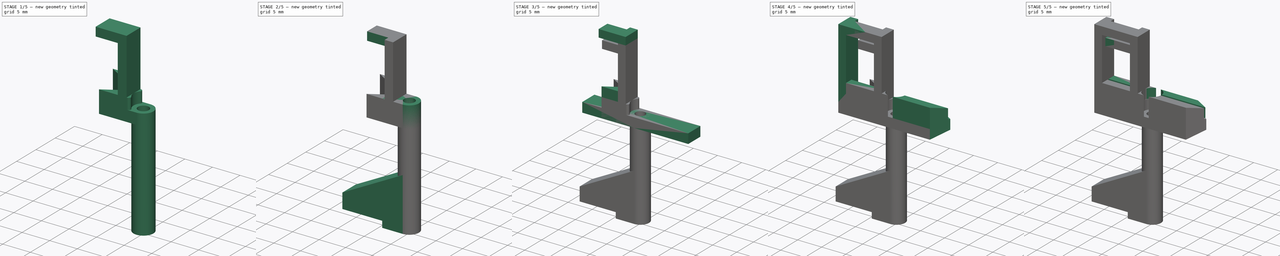
[diagram: build sequence overview — one tinted view per stage of 5, left to right]
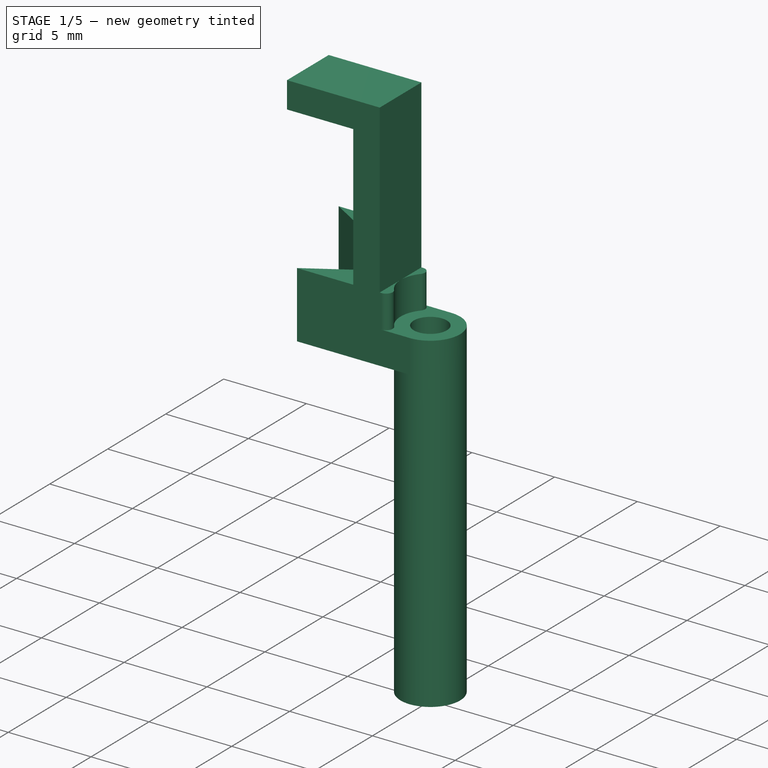
[diagram: stage 1 of 5 — iso view after this stage's code; geometry added in this stage tinted green]
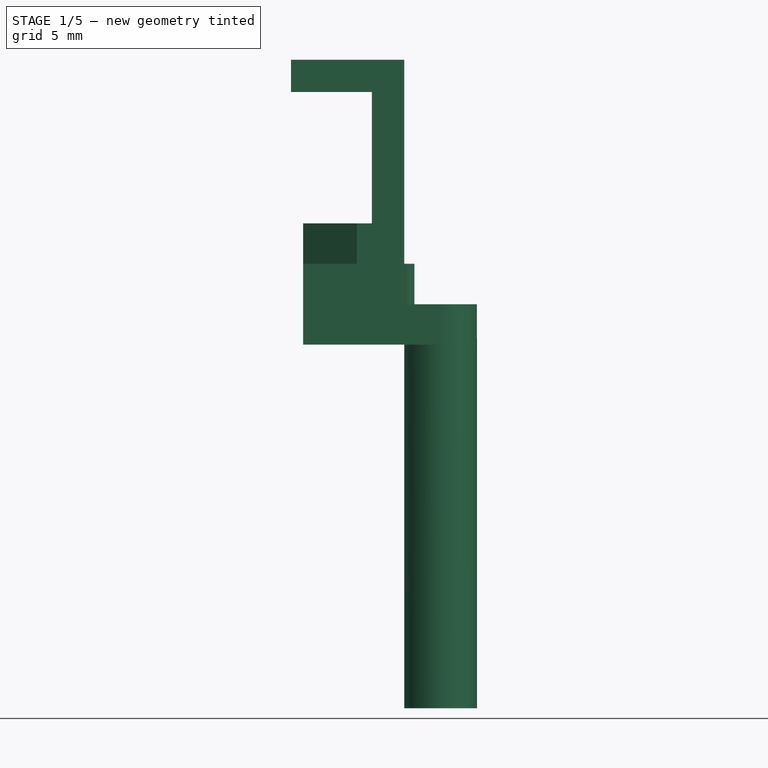
[diagram: stage 1 of 5 — front view after this stage's code; geometry added in this stage tinted green]
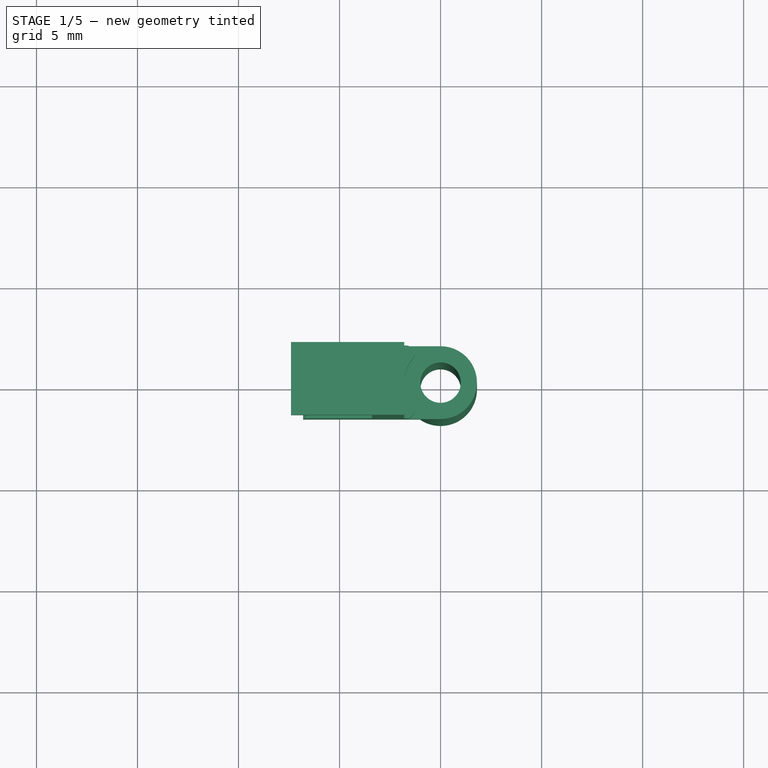
[diagram: stage 1 of 5 — top view after this stage's code; geometry added in this stage tinted green]
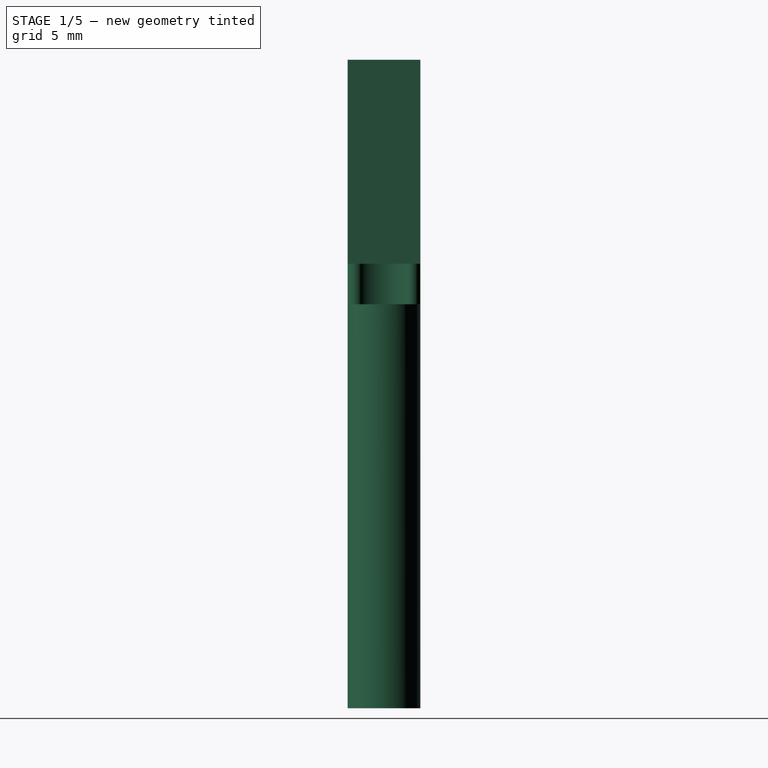
[diagram: stage 1 of 5 — right view after this stage's code; geometry added in this stage tinted green]
FCSTD DOCUMENT  (FreeCAD 0.18.4R)
Label: pcbMount
License: All rights reserved
LicenseURL: http://en.wikipedia.org/wiki/All_rights_reserved
objects: Sketcher::SketchObject×40, PartDesign::Pad×28, PartDesign::Pocket×12, PartDesign::Body×4
note: 124 computed .brp shape members not serialized (recipe doc carries the construction recipe); baked Part::Feature solids carry a one-line shape summary decoded from their .brp

FEATURE [Sketcher::SketchObject] Sketch040
  ExternalGeometry = -> [Pad022]
  MapMode = 5
  Placement = pos=(0,-3,0) rot=(1,0,0;1.5708rad)
  sketch-geometry (3):
    g0: LineSegment StartX=11.2 StartY=20 StartZ=0 EndX=11.2 EndY=18 EndZ=0
    g1: LineSegment StartX=11.2 StartY=20 StartZ=0 EndX=8.2 EndY=18 EndZ=0
    g2: LineSegment StartX=11.2 StartY=18 StartZ=0 EndX=8.2 EndY=18 EndZ=0
  constraints (7):
    c: Coincident(g1,g0)
    c: Coincident(g2,g0)
    c: Coincident(g2,g1)
    c: Horizontal(g2)
    c: Distance(g2) = 3
    c: Coincident(g0,g-3)
    c: Coincident(g0,g-3)
FEATURE [Sketcher::SketchObject] Sketch044
  MapMode = 5
  Support = -> [XY_Plane003]
  expr: Constraints[3] = 1 + 0.4 * 2
  expr: Constraints[2] = 2 / 2
  sketch-geometry (2):
    g0: Circle CenterX=0 CenterY=0 CenterZ=0 NormalX=0 NormalY=0 NormalZ=1 AngleXU=0 Radius=1
    g1: Circle CenterX=0 CenterY=0 CenterZ=0 NormalX=0 NormalY=0 NormalZ=1 AngleXU=0 Radius=1.8
  constraints (4):
    c: Coincident(g0,g-1)
    c: Coincident(g1,g0)
    c: Radius(g0) = 1
    c: Radius(g1) = 1.8
FEATURE [PartDesign::Pad] Pad024
  Length = 18
  Length2 = 100
  Profile = -> Sketch044
  Type = 0
FEATURE [Sketcher::SketchObject] Sketch042
  ExternalGeometry = -> [Pad024]
  MapMode = 5
  Placement = pos=(0,0,18) rot=(0,0,1;0rad)
  Support = -> [Pad024]
  sketch-geometry (6):
    g0: LineSegment StartX=-3.8 StartY=1.8 StartZ=0 EndX=4e-16 EndY=1.8 EndZ=0
    g1: LineSegment StartX=-3e-16 StartY=-1.8 StartZ=0 EndX=-3.8 EndY=-1.8 EndZ=0
    g2: LineSegment StartX=-3.8 StartY=-1.8 StartZ=0 EndX=-3.8 EndY=1.8 EndZ=0
    g3: ArcOfCircle CenterX=0 CenterY=0 CenterZ=0 NormalX=0 NormalY=0 NormalZ=1 AngleXU=0 Radius=1.8 StartAngle=4.71239 EndAngle=7.85398
    g4: Circle CenterX=0 CenterY=0 CenterZ=0 NormalX=0 NormalY=0 NormalZ=1 AngleXU=0 Radius=1
    g5: GeomPoint X=-1.8 Y=0 Z=0
  constraints (16):
    c: Coincident(g1,g2)
    c: Coincident(g2,g0)
    c: Horizontal(g0)
    c: Horizontal(g1)
    c: Vertical(g2)
    c: Coincident(g3,g-1)
    c: PointOnObject(g3,g-4)
    c: PointOnObject(g3,g-2)
    c: PointOnObject(g3,g-2)
    c: Coincident(g0,g3)
    c: Coincident(g1,g3)
    c: Coincident(g4,g3)
    c: Equal(g-3,g4)
    c: PointOnObject(g5,g-4)
    c: PointOnObject(g5,g-1)
    c: DistanceX(g0,g5) = 2
FEATURE [PartDesign::Pad] Pad025
  BaseFeature = -> Pad024
  Length = 4
  Length2 = 100
  Profile = -> Sketch042
  Type = 0
FEATURE [Sketcher::SketchObject] Sketch046
  ExternalGeometry = -> [Pad025]
  MapMode = 5
  Placement = pos=(0,-1.8,0) rot=(1,0,0;1.5708rad)
  Support = -> [Pad025]
  sketch-geometry (3):
    g0: LineSegment StartX=-3.8 StartY=20 StartZ=0 EndX=-3.8 EndY=18 EndZ=0
    g1: LineSegment StartX=-3.8 StartY=20 StartZ=0 EndX=-6.8 EndY=18 EndZ=0
    g2: LineSegment StartX=-3.8 StartY=18 StartZ=0 EndX=-6.8 EndY=18 EndZ=0
  constraints (8):
    c: Coincident(g2,g1)
    c: Coincident(g2,g0)
    c: Horizontal(g2)
    c: Distance(g2) = 3
    c: Coincident(g-3,g0)
    c: Coincident(g1,g0)
    c: PointOnObject(g0,g-3)
    c: Distance(g0) = 2
FEATURE [PartDesign::Pad] Pad027
  BaseFeature = -> Pad025
  Length = 10
  Length2 = 100
  Profile = -> Sketch046
  Reversed = true
  Type = 3
  UpToFace = -> Pad025 [Face7]
FEATURE [Sketcher::SketchObject] Sketch047
  ExternalGeometry = -> [Pad025]
  MapMode = 5
  Placement = pos=(0,0,22) rot=(0,0,1;0rad)
  Support = -> [Pad027]
  sketch-geometry (5):
    g0: LineSegment StartX=-3.8 StartY=1.8 StartZ=0 EndX=-6.8 EndY=1.8 EndZ=0
    g1: LineSegment StartX=-3.8 StartY=-1.8 StartZ=0 EndX=-3.8 EndY=1.8 EndZ=0
    g2: LineSegment StartX=-6.8 StartY=1.8 StartZ=0 EndX=-3.81 EndY=0 EndZ=0
    g3: LineSegment StartX=-3.81 StartY=0 StartZ=0 EndX=-6.8 EndY=-1.8 EndZ=0
    g4: LineSegment StartX=-6.8 StartY=-1.8 StartZ=0 EndX=-3.8 EndY=-1.8 EndZ=0
  constraints (13):
    c: Horizontal(g4)
    c: Horizontal(g0)
    c: Equal(g0,g4)
    c: Distance(g0) = 3
    c: Coincident(g1,g-3)
    c: Coincident(g1,g-3)
    c: Coincident(g2,g3)
    c: PointOnObject(g2,g-1)
    c: Coincident(g2,g0)
    c: Coincident(g0,g1)
    c: Coincident(g3,g4)
    c: Coincident(g1,g4)
    c: DistanceX(g2,g1) = 0.01
FEATURE [PartDesign::Pad] Pad026
  BaseFeature = -> Pad027
  Length = 10
  Length2 = 100
  Profile = -> Sketch047
  Reversed = true
  Type = 3
  UpToFace = -> Pad027 [Face4]
FEATURE [Sketcher::SketchObject] Sketch052
  ExternalGeometry = -> [Pad026]
  MapMode = 5
  Placement = pos=(0,0,22) rot=(0,0,1;0rad)
  Support = -> [Pad026]
  sketch-geometry (6):
    g0: ArcOfCircle CenterX=0 CenterY=0 CenterZ=0 NormalX=0 NormalY=0 NormalZ=1 AngleXU=0 Radius=1.8 StartAngle=4.71239 EndAngle=7.85398
    g1: LineSegment StartX=6e-16 StartY=1.8 StartZ=0 EndX=-1.69706 EndY=1.8 EndZ=0
    g2: LineSegment StartX=-3e-16 StartY=-1.8 StartZ=0 EndX=-1.69706 EndY=-1.8 EndZ=0
    g3: ArcOfCircle CenterX=0 CenterY=0 CenterZ=0 NormalX=0 NormalY=0 NormalZ=1 AngleXU=0 Radius=1.8 StartAngle=2.45182 EndAngle=3.83137
    g4: ArcOfCircle CenterX=-1.69706 CenterY=1.4 CenterZ=0 NormalX=0 NormalY=0 NormalZ=1 AngleXU=0 Radius=0.4 StartAngle=5.59341 EndAngle=7.85398
    g5: ArcOfCircle CenterX=-1.69706 CenterY=-1.4 CenterZ=0 NormalX=0 NormalY=0 NormalZ=1 AngleXU=0 Radius=0.4 StartAngle=4.71239 EndAngle=6.97296
  constraints (16):
    c: Coincident(g0,g-1)
    c: Coincident(g0,g-3)
    c: Coincident(g0,g-3)
    c: Coincident(g1,g0)
    c: Horizontal(g1)
    c: Coincident(g2,g0)
    c: Horizontal(g2)
    c: Equal(g1,g2)
    c: Coincident(g3,g0)
    c: Equal(g4,g5)
    c: Tangent(g4,g3) = 1.5708
    c: Tangent(g5,g3) = 1.5708
    c: Tangent(g5,g2) = 1.5708
    c: Tangent(g4,g1) = -1.5708
    c: Radius(g4) = 0.4
    c: Equal(g3,g0)
FEATURE [PartDesign::Pocket] Pocket005
  BaseFeature = -> Pad026
  Length = 2
  Length2 = 100
  Profile = -> Sketch052
  Type = 0
FEATURE [Sketcher::SketchObject] Sketch048
  ExternalGeometry = -> [Pocket005]
  MapMode = 5
  Placement = pos=(0,0,22) rot=(0,0,1;0rad)
  Support = -> [Pocket005]
  sketch-geometry (4):
    g0: LineSegment StartX=-1.8 StartY=1.8 StartZ=0 EndX=-3.4 EndY=1.8 EndZ=0
    g1: LineSegment StartX=-3.4 StartY=1.8 StartZ=0 EndX=-3.4 EndY=-1.8 EndZ=0
    g2: LineSegment StartX=-3.4 StartY=-1.8 StartZ=0 EndX=-1.8 EndY=-1.8 EndZ=0
    g3: LineSegment StartX=-1.8 StartY=-1.8 StartZ=0 EndX=-1.8 EndY=1.8 EndZ=0
  constraints (12):
    c: Coincident(g0,g1)
    c: Coincident(g1,g2)
    c: Coincident(g2,g3)
    c: Coincident(g3,g0)
    c: Horizontal(g0)
    c: Horizontal(g2)
    c: Vertical(g1)
    c: Vertical(g3)
    c: Distance(g0) = 1.6
    c: Tangent(g3,g-3)
    c: PointOnObject(g0,g-4)
    c: PointOnObject(g1,g-5)
FEATURE [PartDesign::Pad] Pad021
  BaseFeature = -> Pocket005
  Length = 8.5
  Length2 = 100
  Profile = -> Sketch048
  Type = 0
  expr: Length = 6.5 + 2
FEATURE [Sketcher::SketchObject] Sketch050
  ExternalGeometry = -> [Pad021]
  MapMode = 5
  Placement = pos=(0,0,22) rot=(0,0,1;0rad)
  Support = -> [Pad021]
  sketch-geometry (4):
    g0: LineSegment StartX=-6.8 StartY=1.8 StartZ=0 EndX=-3.4 EndY=1.8 EndZ=0
    g1: LineSegment StartX=-4.14222 StartY=0.2 StartZ=0 EndX=-6.8 EndY=1.8 EndZ=0
    g2: LineSegment StartX=-4.14222 StartY=0.2 StartZ=0 EndX=-3.4 EndY=0.2 EndZ=0
    g3: LineSegment StartX=-3.4 StartY=0.2 StartZ=0 EndX=-3.4 EndY=1.8 EndZ=0
  constraints (11):
    c: Coincident(g1,g0)
    c: Coincident(g2,g1)
    c: Coincident(g3,g2)
    c: Coincident(g3,g0)
    c: Distance(g3) = 1.6
    c: Horizontal(g0)
    c: Horizontal(g2)
    c: Coincident(g0,g-4)
    c: PointOnObject(g0,g-3)
    c: PointOnObject(g1,g-3)
    c: Vertical(g3)
FEATURE [PartDesign::Pad] Pad031
  BaseFeature = -> Pad021
  Length = 2
  Length2 = 100
  Profile = -> Sketch050
  Type = 0
FEATURE [Sketcher::SketchObject] Sketch054
  ExternalGeometry = -> [Pad031]
  MapMode = 5
  Placement = pos=(0,0,30.5) rot=(0,0,1;0rad)
  Support = -> [Pad031]
  sketch-geometry (4):
    g0: LineSegment StartX=-1.8 StartY=-1.8 StartZ=0 EndX=-7.4 EndY=-1.8 EndZ=0
    g1: LineSegment StartX=-7.4 StartY=-1.8 StartZ=0 EndX=-7.4 EndY=1.8 EndZ=0
    g2: LineSegment StartX=-7.4 StartY=1.8 StartZ=0 EndX=-1.8 EndY=1.8 EndZ=0
    g3: LineSegment StartX=-1.8 StartY=1.8 StartZ=0 EndX=-1.8 EndY=-1.8 EndZ=0
  constraints (10):
    c: Coincident(g0,g1)
    c: Coincident(g1,g2)
    c: Coincident(g2,g3)
    c: Coincident(g3,g0)
    c: Horizontal(g0)
    c: Horizontal(g2)
    c: Vertical(g1)
    c: Coincident(g2,g-3)
    c: Coincident(g0,g-3)
    c: DistanceX(g1,g-4) = 4
FEATURE [PartDesign::Pad] Pad029
  BaseFeature = -> Pad031
  Length = 1.6
  Length2 = 100
  Profile = -> Sketch054
  Type = 0
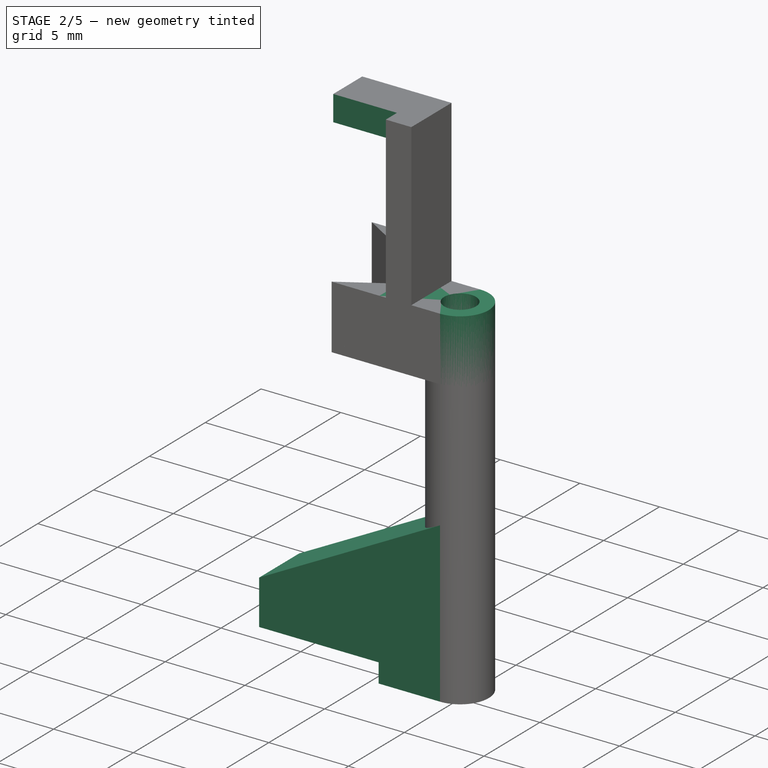
[diagram: stage 2 of 5 — iso view after this stage's code; geometry added in this stage tinted green]
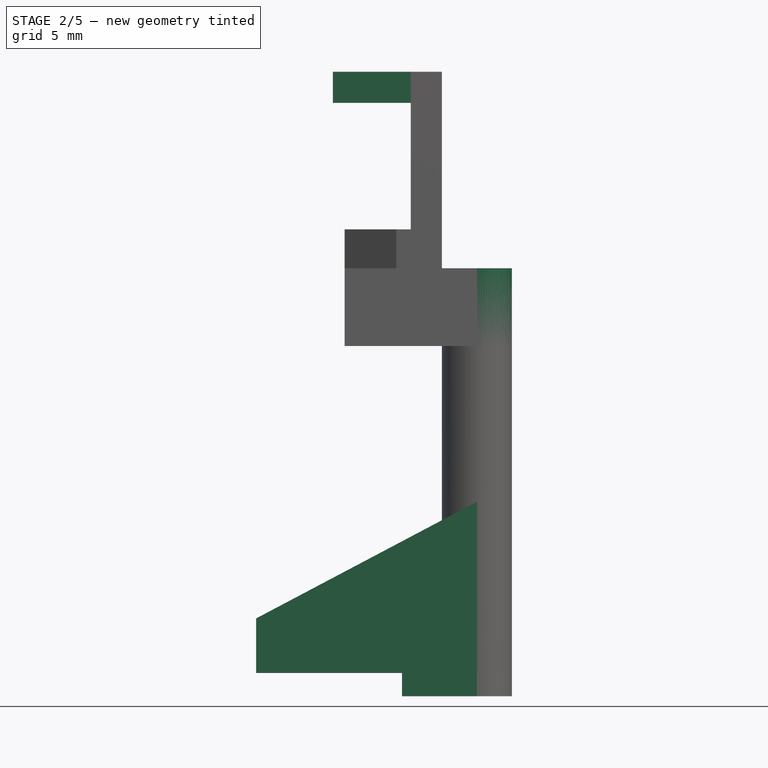
[diagram: stage 2 of 5 — front view after this stage's code; geometry added in this stage tinted green]
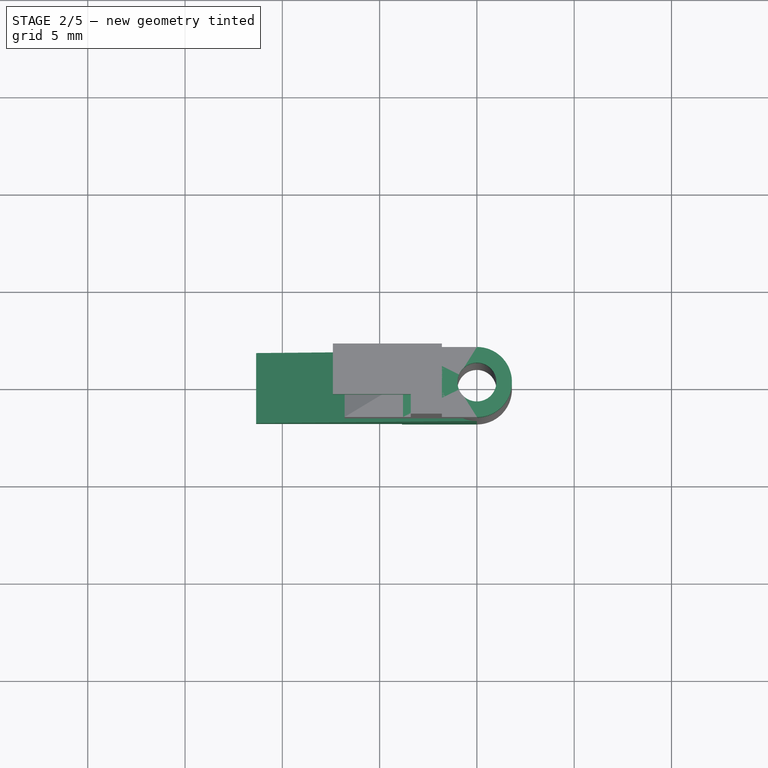
[diagram: stage 2 of 5 — top view after this stage's code; geometry added in this stage tinted green]
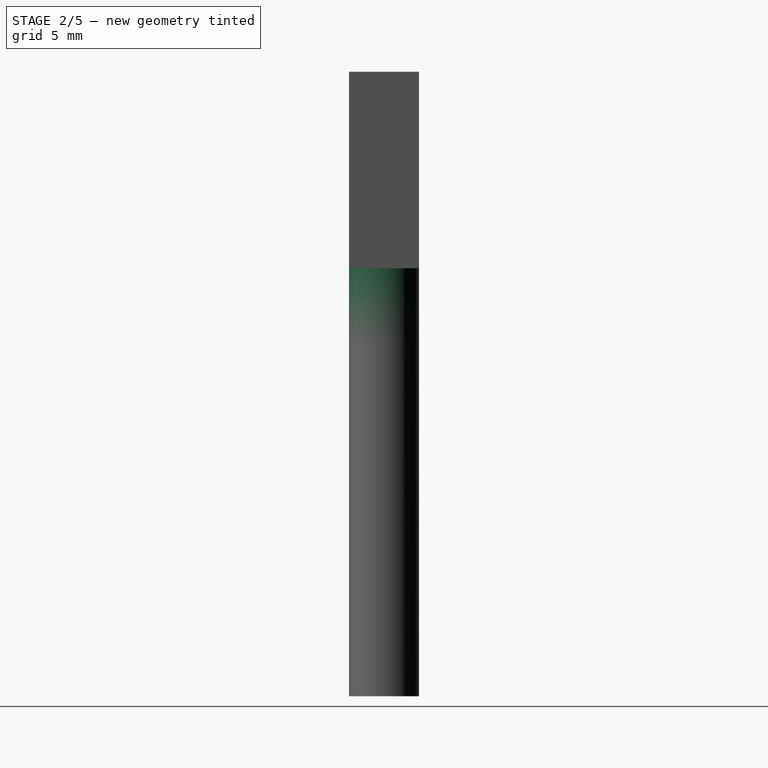
[diagram: stage 2 of 5 — right view after this stage's code; geometry added in this stage tinted green]
FEATURE [Sketcher::SketchObject] Sketch002
  MapMode = 5
  Support = -> [XY_Plane001]
  expr: Constraints[3] = 1 + 0.4 * 2
  expr: Constraints[2] = 2 / 2
  sketch-geometry (2):
    g0: Circle CenterX=0 CenterY=0 CenterZ=0 NormalX=0 NormalY=0 NormalZ=1 AngleXU=0 Radius=1
    g1: Circle CenterX=0 CenterY=0 CenterZ=0 NormalX=0 NormalY=0 NormalZ=1 AngleXU=0 Radius=1.8
  constraints (4):
    c: Coincident(g0,g-1)
    c: Coincident(g1,g0)
    c: Radius(g0) = 1
    c: Radius(g1) = 1.8
FEATURE [PartDesign::Pad] Pad002
  Length = 18
  Length2 = 100
  Profile = -> Sketch002
  Type = 0
FEATURE [Sketcher::SketchObject] Sketch003
  ExternalGeometry = -> [Pad002]
  MapMode = 5
  Placement = pos=(0,0,18) rot=(0,0,1;0rad)
  Support = -> [Pad002]
  sketch-geometry (6):
    g0: LineSegment StartX=-3.8 StartY=1.8 StartZ=0 EndX=4e-16 EndY=1.8 EndZ=0
    g1: LineSegment StartX=-3e-16 StartY=-1.8 StartZ=0 EndX=-3.8 EndY=-1.8 EndZ=0
    g2: LineSegment StartX=-3.8 StartY=-1.8 StartZ=0 EndX=-3.8 EndY=1.8 EndZ=0
    g3: ArcOfCircle CenterX=0 CenterY=0 CenterZ=0 NormalX=0 NormalY=0 NormalZ=1 AngleXU=0 Radius=1.8 StartAngle=4.71239 EndAngle=7.85398
    g4: Circle CenterX=0 CenterY=0 CenterZ=0 NormalX=0 NormalY=0 NormalZ=1 AngleXU=0 Radius=1
    g5: GeomPoint X=-1.8 Y=0 Z=0
  constraints (16):
    c: Coincident(g1,g2)
    c: Coincident(g2,g0)
    c: Horizontal(g0)
    c: Horizontal(g1)
    c: Vertical(g2)
    c: Coincident(g3,g-1)
    c: PointOnObject(g3,g-4)
    c: PointOnObject(g3,g-2)
    c: PointOnObject(g3,g-2)
    c: Coincident(g0,g3)
    c: Coincident(g1,g3)
    c: Coincident(g4,g3)
    c: Equal(g-3,g4)
    c: PointOnObject(g5,g-4)
    c: PointOnObject(g5,g-1)
    c: DistanceX(g0,g5) = 2
FEATURE [PartDesign::Pad] Pad003
  BaseFeature = -> Pad002
  Length = 4
  Length2 = 100
  Profile = -> Sketch003
  Type = 0
FEATURE [PartDesign::Pad] Pad004
  BaseFeature = -> Pad003
  Length = 10
  Length2 = 100
  Profile = -> Sketch009
  Reversed = true
  Type = 3
  UpToFace = -> Pad003 [Face7]
FEATURE [Sketcher::SketchObject] Sketch056
  ExternalGeometry = -> [Pad029]
  MapMode = 5
  Placement = pos=(0,0,32.1) rot=(0,0,1;0rad)
  Support = -> [Pad029]
  sketch-geometry (4):
    g0: LineSegment StartX=-3.4 StartY=-1.8 StartZ=0 EndX=-7.4 EndY=-1.8 EndZ=0
    g1: LineSegment StartX=-7.4 StartY=-1.8 StartZ=0 EndX=-7.4 EndY=-0.8 EndZ=0
    g2: LineSegment StartX=-7.4 StartY=-0.8 StartZ=0 EndX=-3.4 EndY=-0.8 EndZ=0
    g3: LineSegment StartX=-3.4 StartY=-0.8 StartZ=0 EndX=-3.4 EndY=-1.8 EndZ=0
  constraints (11):
    c: Coincident(g0,g1)
    c: Coincident(g1,g2)
    c: Coincident(g2,g3)
    c: Coincident(g3,g0)
    c: Horizontal(g0)
    c: Horizontal(g2)
    c: Vertical(g1)
    c: Vertical(g3)
    c: Coincident(g0,g-4)
    c: PointOnObject(g1,g-3)
    c: Distance(g3) = 1
FEATURE [PartDesign::Pocket] Pocket006
  BaseFeature = -> Pad029
  Length = 5
  Length2 = 100
  Profile = -> Sketch056
  Type = 2
FEATURE [PartDesign::Body] Body001
  Group = -> [Sketch002,Pad002,Sketch003,Pad003,Sketch009,Sketch010,Pad004,Pad005,Sketch036,Pocket002,Sketch037,Pad018,Sketch038,Pad019,Sketch039,Pad020,Sketch059,Pocket009]
  Origin = -> Origin001
  Placement = pos=(15.2,0,0) rot=(0,0,1;0rad)
  Tip = -> Pocket009
  expr: Placement.Base.x = 20 - 2.4 * 2
FEATURE [Sketcher::SketchObject] Sketch060
  ExternalGeometry = -> [Pocket006]
  MapMode = 5
  Support = -> [XY_Plane003]
  expr: Constraints[11] = (20 - 2.4 * 2) / 2 + 7.5 / 2
  sketch-geometry (4):
    g0: ArcOfCircle CenterX=0 CenterY=0 CenterZ=0 NormalX=0 NormalY=0 NormalZ=1 AngleXU=0 Radius=1.8 StartAngle=1.5708 EndAngle=4.71239
    g1: LineSegment StartX=0 StartY=1.8 StartZ=0 EndX=-11.35 EndY=1.8 EndZ=0
    g2: LineSegment StartX=0 StartY=-1.8 StartZ=0 EndX=-11.35 EndY=-1.8 EndZ=0
    g3: LineSegment StartX=-11.35 StartY=1.8 StartZ=0 EndX=-11.35 EndY=-1.8 EndZ=0
  constraints (12):
    c: Coincident(g0,g-1)
    c: PointOnObject(g0,g-2)
    c: PointOnObject(g0,g-2)
    c: Equal(g-3,g0)
    c: Coincident(g1,g0)
    c: Horizontal(g1)
    c: Coincident(g2,g0)
    c: Horizontal(g2)
    c: Coincident(g3,g1)
    c: Coincident(g3,g2)
    c: Vertical(g3)
    c: Distance(g1) = 11.35
FEATURE [PartDesign::Pad] Pad034
  BaseFeature = -> Pocket006
  Length = 4
  Length2 = 100
  Profile = -> Sketch060
  Type = 0
FEATURE [Sketcher::SketchObject] Sketch061
  ExternalGeometry = -> [Pad034]
  MapMode = 5
  Placement = pos=(0,0,0) rot=(1,0,0;3.14159rad)
  Support = -> [Pad034]
  sketch-geometry (4):
    g0: LineSegment StartX=-11.35 StartY=1.8 StartZ=0 EndX=-3.85 EndY=1.8 EndZ=0
    g1: LineSegment StartX=-3.85 StartY=1.8 StartZ=0 EndX=-3.85 EndY=-1.8 EndZ=0
    g2: LineSegment StartX=-3.85 StartY=-1.8 StartZ=0 EndX=-11.35 EndY=-1.8 EndZ=0
    g3: LineSegment StartX=-11.35 StartY=-1.8 StartZ=0 EndX=-11.35 EndY=1.8 EndZ=0
  constraints (10):
    c: Coincident(g0,g1)
    c: Coincident(g1,g2)
    c: Coincident(g2,g3)
    c: Coincident(g3,g0)
    c: Horizontal(g0)
    c: Horizontal(g2)
    c: Vertical(g1)
    c: Coincident(g0,g-3)
    c: Coincident(g2,g-3)
    c: Distance(g0) = 7.5
FEATURE [PartDesign::Pocket] Pocket010
  BaseFeature = -> Pad034
  Length = 1.2
  Length2 = 100
  Profile = -> Sketch061
  Type = 0
FEATURE [Sketcher::SketchObject] Sketch062
  ExternalGeometry = -> [Pocket010]
  MapMode = 5
  Placement = pos=(0,1.8,0) rot=(0,0.707107,0.707107;3.14159rad)
  Support = -> [Pocket010]
  sketch-geometry (3):
    g0: LineSegment StartX=11.35 StartY=4 StartZ=0 EndX=0 EndY=4 EndZ=0
    g1: LineSegment StartX=11.35 StartY=4 StartZ=0 EndX=0 EndY=10 EndZ=0
    g2: LineSegment StartX=0 StartY=10 StartZ=0 EndX=0 EndY=4 EndZ=0
  constraints (7):
    c: Coincident(g0,g-3)
    c: Coincident(g0,g-3)
    c: Coincident(g1,g0)
    c: Coincident(g2,g1)
    c: Coincident(g2,g0)
    c: Vertical(g2)
    c: Distance(g2) = 6
FEATURE [PartDesign::Pad] Pad035
  BaseFeature = -> Pocket010
  Length = 10
  Length2 = 100
  Profile = -> Sketch062
  Reversed = true
  Type = 3
  UpToFace = -> Pocket010 [Face7]
FEATURE [Sketcher::SketchObject] Sketch063
  ExternalGeometry = -> [Pad035]
  MapMode = 5
  Support = -> [XY_Plane003]
  sketch-geometry (1):
    g0: Circle CenterX=0 CenterY=0 CenterZ=0 NormalX=0 NormalY=0 NormalZ=1 AngleXU=0 Radius=1
  constraints (2):
    c: Coincident(g0,g-1)
    c: Equal(g-3,g0)
FEATURE [PartDesign::Pocket] Pocket011
  BaseFeature = -> Pad035
  Length = 5
  Length2 = 100
  Profile = -> Sketch063
  Reversed = true
  Type = 1
FEATURE [PartDesign::Body] Body002
  Group = -> [Sketch044,Pad024,Sketch042,Pad025,Sketch046,Sketch047,Pad027,Pad026,Sketch052,Pocket005,Sketch048,Pad021,Sketch050,Pad031,Sketch054,Pad029,Sketch056,Pocket006,Sketch060,Pad034,Sketch061,Pocket010,Sketch062,Pad035,Sketch063,Pocket011]
  Origin = -> Origin002
  Placement = pos=(15.2,35.2,0) rot=(0,0,1;0rad)
  Tip = -> Pocket011
  expr: Placement.Base.y = 40 - 2.4 * 2
  expr: Placement.Base.x = 20 - 2.4 * 2
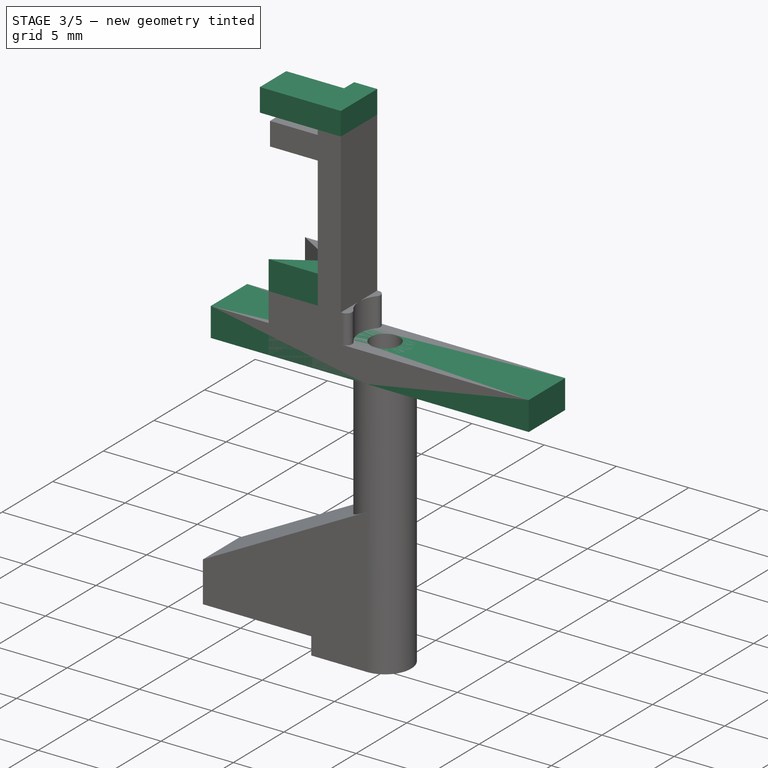
[diagram: stage 3 of 5 — iso view after this stage's code; geometry added in this stage tinted green]
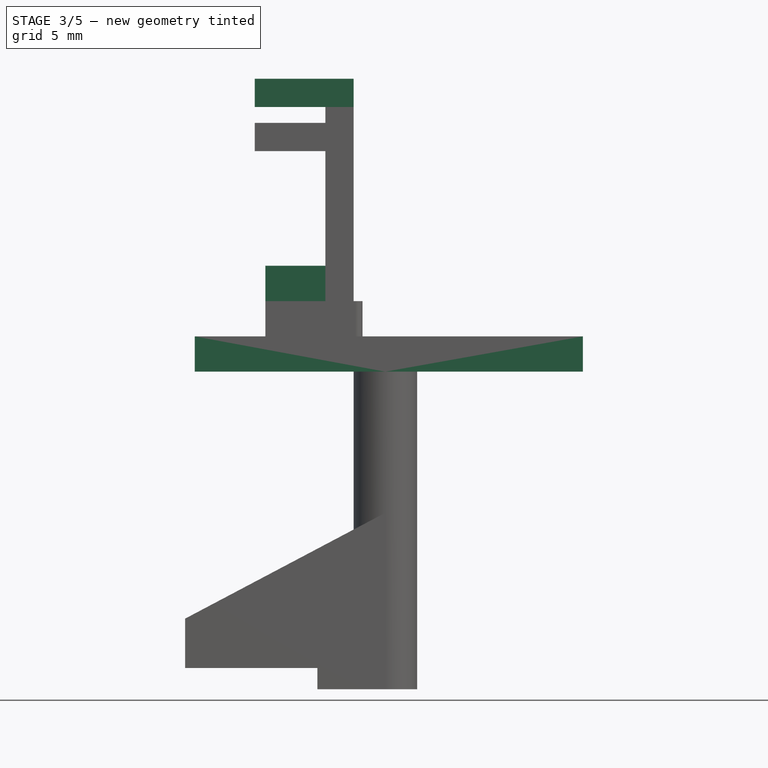
[diagram: stage 3 of 5 — front view after this stage's code; geometry added in this stage tinted green]
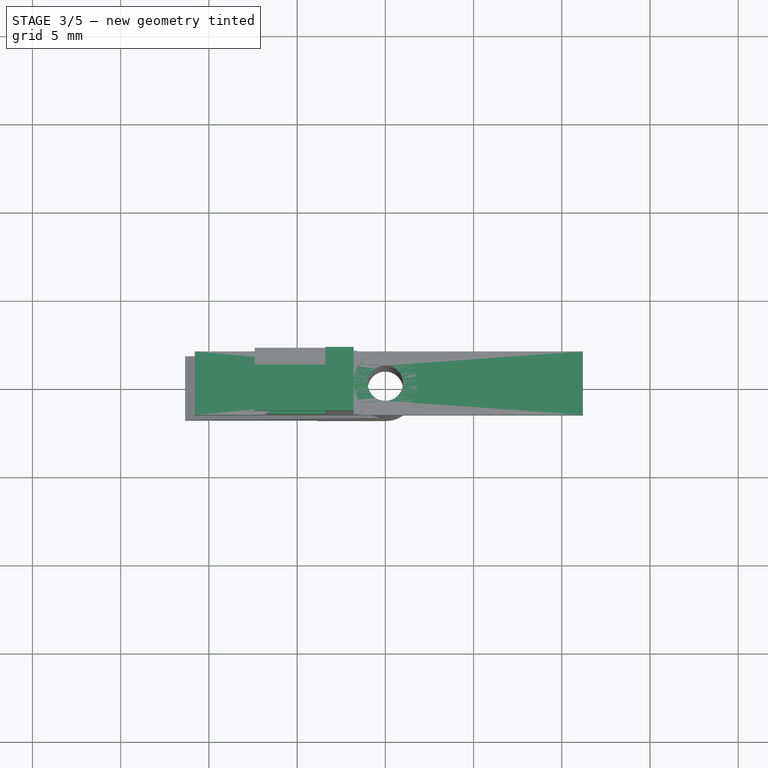
[diagram: stage 3 of 5 — top view after this stage's code; geometry added in this stage tinted green]
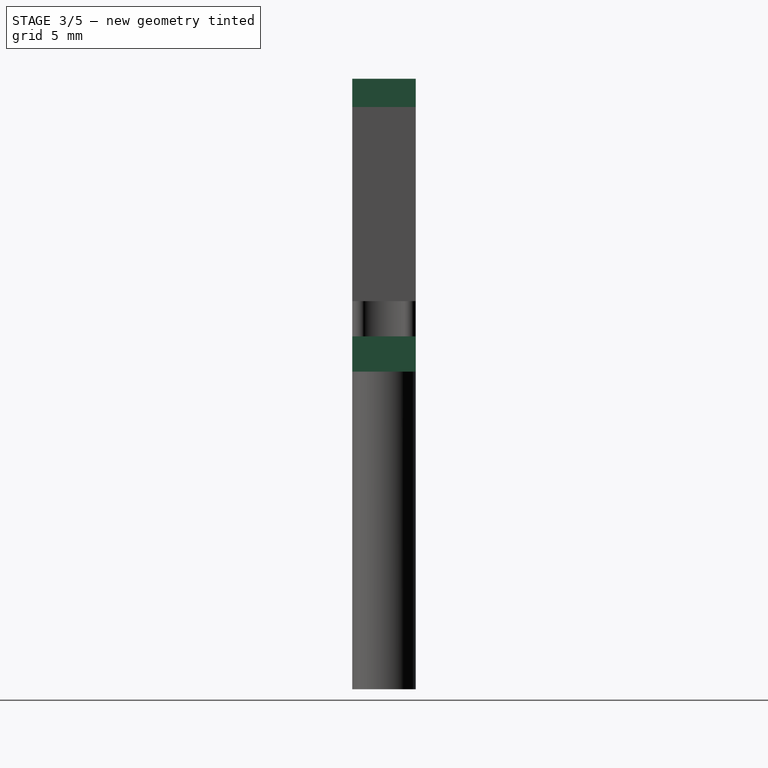
[diagram: stage 3 of 5 — right view after this stage's code; geometry added in this stage tinted green]
FEATURE [Sketcher::SketchObject] Sketch
  MapMode = 5
  Support = -> [XY_Plane]
  expr: Constraints[3] = 1 + 0.4 * 2
  expr: Constraints[2] = 2 / 2
  sketch-geometry (2):
    g0: Circle CenterX=0 CenterY=0 CenterZ=0 NormalX=0 NormalY=0 NormalZ=1 AngleXU=0 Radius=1
    g1: Circle CenterX=0 CenterY=0 CenterZ=0 NormalX=0 NormalY=0 NormalZ=1 AngleXU=0 Radius=1.8
  constraints (4):
    c: Coincident(g0,g-1)
    c: Coincident(g1,g0)
    c: Radius(g0) = 1
    c: Radius(g1) = 1.8
FEATURE [PartDesign::Pad] Pad
  Length = 18
  Length2 = 100
  Profile = -> Sketch
  Type = 0
FEATURE [Sketcher::SketchObject] Sketch001
  ExternalGeometry = -> [Pad]
  MapMode = 5
  Placement = pos=(0,0,18) rot=(0,0,1;0rad)
  Support = -> [Pad]
  expr: Constraints[15] = 20 - 2.4 * 2 - 2 - 0.2
  expr: Constraints[12] = 21 + 1.6 - (2 - 1.6) - 0.2
  sketch-geometry (6):
    g0: LineSegment StartX=-10.8 StartY=1.8 StartZ=0 EndX=11.2 EndY=1.8 EndZ=0
    g1: LineSegment StartX=11.2 StartY=1.8 StartZ=0 EndX=11.2 EndY=-1.8 EndZ=0
    g2: LineSegment StartX=11.2 StartY=-1.8 StartZ=0 EndX=-10.8 EndY=-1.8 EndZ=0
    g3: LineSegment StartX=-10.8 StartY=-1.8 StartZ=0 EndX=-10.8 EndY=1.8 EndZ=0
    g4: Circle CenterX=0 CenterY=0 CenterZ=0 NormalX=0 NormalY=0 NormalZ=1 AngleXU=0 Radius=1
    g5: GeomPoint X=-1.8 Y=0 Z=0
  constraints (16):
    c: Coincident(g0,g1)
    c: Coincident(g1,g2)
    c: Coincident(g2,g3)
    c: Coincident(g3,g0)
    c: Horizontal(g0)
    c: Horizontal(g2)
    c: Vertical(g1)
    c: Vertical(g3)
    c: Tangent(g0,g-3)
    c: Tangent(g-3,g2)
    c: Coincident(g4,g-1)
    c: Equal(g-4,g4)
    c: Distance(g0) = 22
    c: PointOnObject(g5,g-3)
    c: PointOnObject(g5,g-1)
    c: DistanceX(g5,g0) = 13
FEATURE [PartDesign::Pad] Pad001
  BaseFeature = -> Pad
  Length = 2
  Length2 = 100
  Profile = -> Sketch001
  Type = 0
FEATURE [Sketcher::SketchObject] Sketch010
  ExternalGeometry = -> [Pad003]
  MapMode = 5
  Placement = pos=(0,0,22) rot=(0,0,1;0rad)
  Support = -> [Pad004]
  sketch-geometry (5):
    g0: LineSegment StartX=-3.8 StartY=1.8 StartZ=0 EndX=-6.8 EndY=1.8 EndZ=0
    g1: LineSegment StartX=-3.8 StartY=-1.8 StartZ=0 EndX=-3.8 EndY=1.8 EndZ=0
    g2: LineSegment StartX=-6.8 StartY=1.8 StartZ=0 EndX=-3.81 EndY=0 EndZ=0
    g3: LineSegment StartX=-3.81 StartY=0 StartZ=0 EndX=-6.8 EndY=-1.8 EndZ=0
    g4: LineSegment StartX=-6.8 StartY=-1.8 StartZ=0 EndX=-3.8 EndY=-1.8 EndZ=0
  constraints (13):
    c: Horizontal(g4)
    c: Horizontal(g0)
    c: Equal(g0,g4)
    c: Distance(g0) = 3
    c: Coincident(g1,g-3)
    c: Coincident(g1,g-3)
    c: Coincident(g2,g3)
    c: PointOnObject(g2,g-1)
    c: Coincident(g2,g0)
    c: Coincident(g0,g1)
    c: Coincident(g3,g4)
    c: Coincident(g1,g4)
    c: DistanceX(g2,g1) = 0.01
FEATURE [PartDesign::Pad] Pad005
  BaseFeature = -> Pad004
  Length = 10
  Length2 = 100
  Profile = -> Sketch010
  Reversed = true
  Type = 3
  UpToFace = -> Pad004 [Face4]
FEATURE [Sketcher::SketchObject] Sketch036
  ExternalGeometry = -> [Pad005]
  MapMode = 5
  Placement = pos=(0,0,22) rot=(0,0,1;0rad)
  Support = -> [Pad005]
  sketch-geometry (6):
    g0: ArcOfCircle CenterX=0 CenterY=0 CenterZ=0 NormalX=0 NormalY=0 NormalZ=1 AngleXU=0 Radius=1.8 StartAngle=4.71239 EndAngle=7.85398
    g1: LineSegment StartX=6e-16 StartY=1.8 StartZ=0 EndX=-1.69706 EndY=1.8 EndZ=0
    g2: LineSegment StartX=-3e-16 StartY=-1.8 StartZ=0 EndX=-1.69706 EndY=-1.8 EndZ=0
    g3: ArcOfCircle CenterX=0 CenterY=0 CenterZ=0 NormalX=0 NormalY=0 NormalZ=1 AngleXU=0 Radius=1.8 StartAngle=2.45182 EndAngle=3.83137
    g4: ArcOfCircle CenterX=-1.69706 CenterY=1.4 CenterZ=0 NormalX=0 NormalY=0 NormalZ=1 AngleXU=0 Radius=0.4 StartAngle=5.59341 EndAngle=7.85398
    g5: ArcOfCircle CenterX=-1.69706 CenterY=-1.4 CenterZ=0 NormalX=0 NormalY=0 NormalZ=1 AngleXU=0 Radius=0.4 StartAngle=4.71239 EndAngle=6.97296
  constraints (16):
    c: Coincident(g0,g-1)
    c: Coincident(g0,g-3)
    c: Coincident(g0,g-3)
    c: Coincident(g1,g0)
    c: Horizontal(g1)
    c: Coincident(g2,g0)
    c: Horizontal(g2)
    c: Equal(g1,g2)
    c: Coincident(g3,g0)
    c: Equal(g4,g5)
    c: Tangent(g4,g3) = 1.5708
    c: Tangent(g5,g3) = 1.5708
    c: Tangent(g5,g2) = 1.5708
    c: Tangent(g4,g1) = -1.5708
    c: Radius(g4) = 0.4
    c: Equal(g3,g0)
FEATURE [PartDesign::Pocket] Pocket002
  BaseFeature = -> Pad005
  Length = 2
  Length2 = 100
  Profile = -> Sketch036
  Type = 0
FEATURE [Sketcher::SketchObject] Sketch037
  ExternalGeometry = -> [Pocket002]
  MapMode = 5
  Placement = pos=(0,0,22) rot=(0,0,1;0rad)
  Support = -> [Pocket002]
  sketch-geometry (4):
    g0: LineSegment StartX=-1.8 StartY=1.8 StartZ=0 EndX=-3.4 EndY=1.8 EndZ=0
    g1: LineSegment StartX=-3.4 StartY=1.8 StartZ=0 EndX=-3.4 EndY=-1.8 EndZ=0
    g2: LineSegment StartX=-3.4 StartY=-1.8 StartZ=0 EndX=-1.8 EndY=-1.8 EndZ=0
    g3: LineSegment StartX=-1.8 StartY=-1.8 StartZ=0 EndX=-1.8 EndY=1.8 EndZ=0
  constraints (12):
    c: Coincident(g0,g1)
    c: Coincident(g1,g2)
    c: Coincident(g2,g3)
    c: Coincident(g3,g0)
    c: Horizontal(g0)
    c: Horizontal(g2)
    c: Vertical(g1)
    c: Vertical(g3)
    c: Distance(g0) = 1.6
    c: Tangent(g3,g-3)
    c: PointOnObject(g0,g-4)
    c: PointOnObject(g1,g-5)
FEATURE [PartDesign::Pad] Pad018
  BaseFeature = -> Pocket002
  Length = 11
  Length2 = 100
  Profile = -> Sketch037
  Type = 0
  expr: Length = 9 + 2
FEATURE [Sketcher::SketchObject] Sketch038
  ExternalGeometry = -> [Pad018]
  MapMode = 5
  Placement = pos=(0,0,22) rot=(0,0,1;0rad)
  Support = -> [Pad018]
  sketch-geometry (4):
    g0: LineSegment StartX=-4.14222 StartY=-0.2 StartZ=0 EndX=-3.4 EndY=-0.2 EndZ=0
    g1: LineSegment StartX=-6.8 StartY=-1.8 StartZ=0 EndX=-4.14222 EndY=-0.2 EndZ=0
    g2: LineSegment StartX=-6.8 StartY=-1.8 StartZ=0 EndX=-3.4 EndY=-1.8 EndZ=0
    g3: LineSegment StartX=-3.4 StartY=-1.8 StartZ=0 EndX=-3.4 EndY=-0.2 EndZ=0
  constraints (10):
    c: Coincident(g1,g0)
    c: Coincident(g2,g1)
    c: Coincident(g3,g2)
    c: Coincident(g3,g0)
    c: Distance(g3) = 1.6
    c: Coincident(g1,g-3)
    c: PointOnObject(g0,g-3)
    c: Horizontal(g0)
    c: PointOnObject(g0,g-4)
    c: Coincident(g2,g-4)
FEATURE [PartDesign::Pad] Pad019
  BaseFeature = -> Pad018
  Length = 2
  Length2 = 100
  Profile = -> Sketch038
  Type = 0
FEATURE [Sketcher::SketchObject] Sketch039
  ExternalGeometry = -> [Pad019]
  MapMode = 5
  Placement = pos=(0,0,33) rot=(0,0,1;0rad)
  Support = -> [Pad019]
  sketch-geometry (4):
    g0: LineSegment StartX=-1.8 StartY=1.8 StartZ=0 EndX=-7.4 EndY=1.8 EndZ=0
    g1: LineSegment StartX=-7.4 StartY=1.8 StartZ=0 EndX=-7.4 EndY=-1.8 EndZ=0
    g2: LineSegment StartX=-7.4 StartY=-1.8 StartZ=0 EndX=-1.8 EndY=-1.8 EndZ=0
    g3: LineSegment StartX=-1.8 StartY=-1.8 StartZ=0 EndX=-1.8 EndY=1.8 EndZ=0
  constraints (10):
    c: Coincident(g0,g1)
    c: Coincident(g1,g2)
    c: Coincident(g2,g3)
    c: Coincident(g3,g0)
    c: Horizontal(g0)
    c: Horizontal(g2)
    c: Vertical(g1)
    c: Coincident(g0,g-3)
    c: Coincident(g2,g-3)
    c: DistanceX(g0,g-4) = 4
FEATURE [PartDesign::Pad] Pad020
  BaseFeature = -> Pad019
  Length = 1.6
  Length2 = 100
  Profile = -> Sketch039
  Type = 0
FEATURE [PartDesign::Body] Body
  Group = -> [Sketch,Pad,Sketch001,Pad001,Sketch007,Sketch008,Pocket,Pocket001,Sketch032,Pad014,Sketch033,Pad015,Sketch034,Pad016,Sketch035,Pad017,Sketch058,Pocket008]
  Origin = -> Origin
  Tip = -> Pocket008
FEATURE [Sketcher::SketchObject] Sketch059
  ExternalGeometry = -> [Pad020]
  MapMode = 5
  Placement = pos=(0,0,34.6) rot=(0,0,1;0rad)
  Support = -> [Pad020]
  sketch-geometry (4):
    g0: LineSegment StartX=-3.4 StartY=1.8 StartZ=0 EndX=-7.4 EndY=1.8 EndZ=0
    g1: LineSegment StartX=-7.4 StartY=1.8 StartZ=0 EndX=-7.4 EndY=0.8 EndZ=0
    g2: LineSegment StartX=-7.4 StartY=0.8 StartZ=0 EndX=-3.4 EndY=0.8 EndZ=0
    g3: LineSegment StartX=-3.4 StartY=0.8 StartZ=0 EndX=-3.4 EndY=1.8 EndZ=0
  constraints (11):
    c: Coincident(g0,g1)
    c: Coincident(g1,g2)
    c: Coincident(g2,g3)
    c: Coincident(g3,g0)
    c: Horizontal(g0)
    c: Horizontal(g2)
    c: Vertical(g1)
    c: Vertical(g3)
    c: Coincident(g0,g-4)
    c: PointOnObject(g1,g-3)
    c: Distance(g3) = 1
FEATURE [PartDesign::Pocket] Pocket009
  BaseFeature = -> Pad020
  Length = 5
  Length2 = 100
  Profile = -> Sketch059
  Type = 2
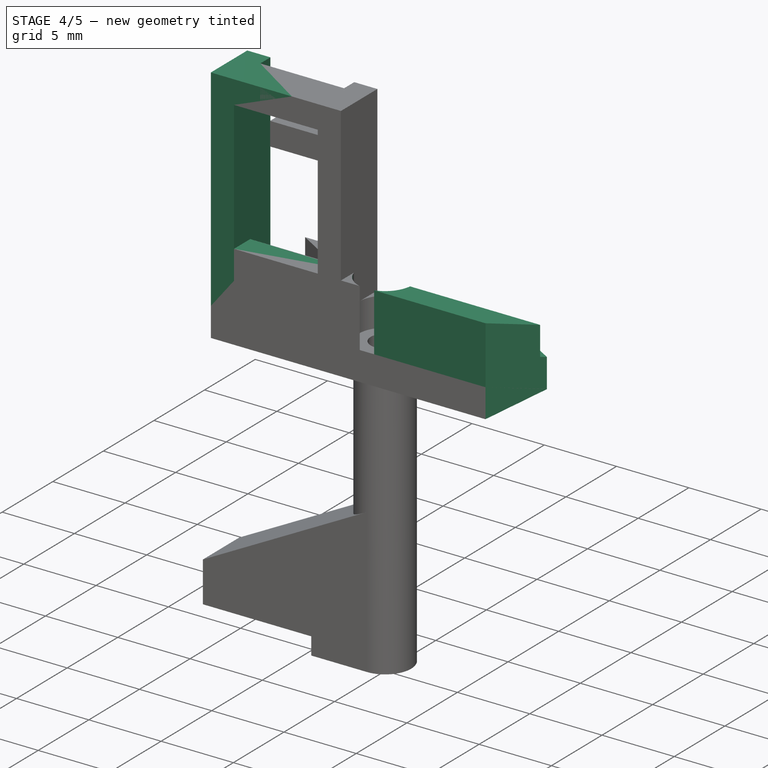
[diagram: stage 4 of 5 — iso view after this stage's code; geometry added in this stage tinted green]
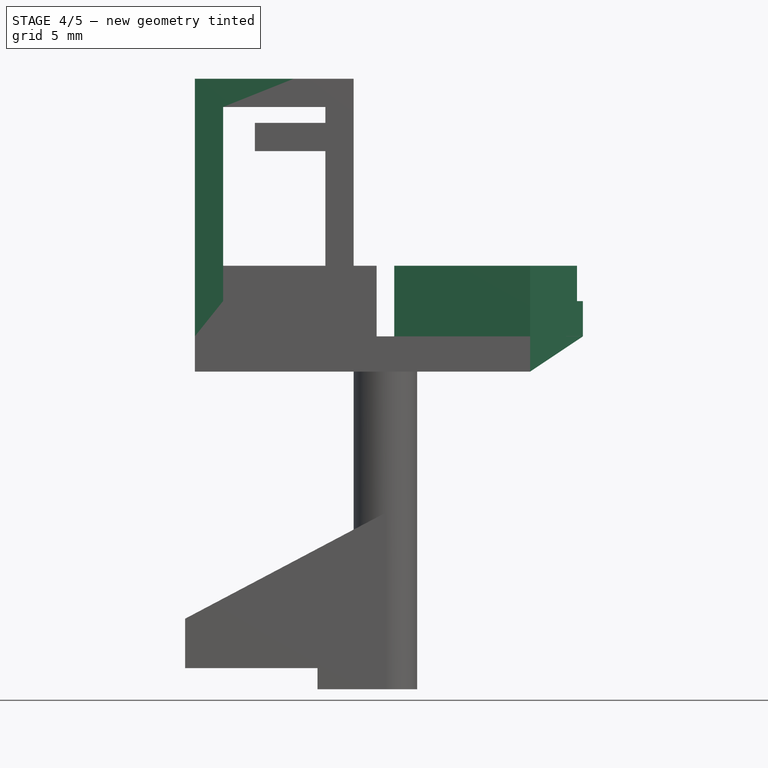
[diagram: stage 4 of 5 — front view after this stage's code; geometry added in this stage tinted green]
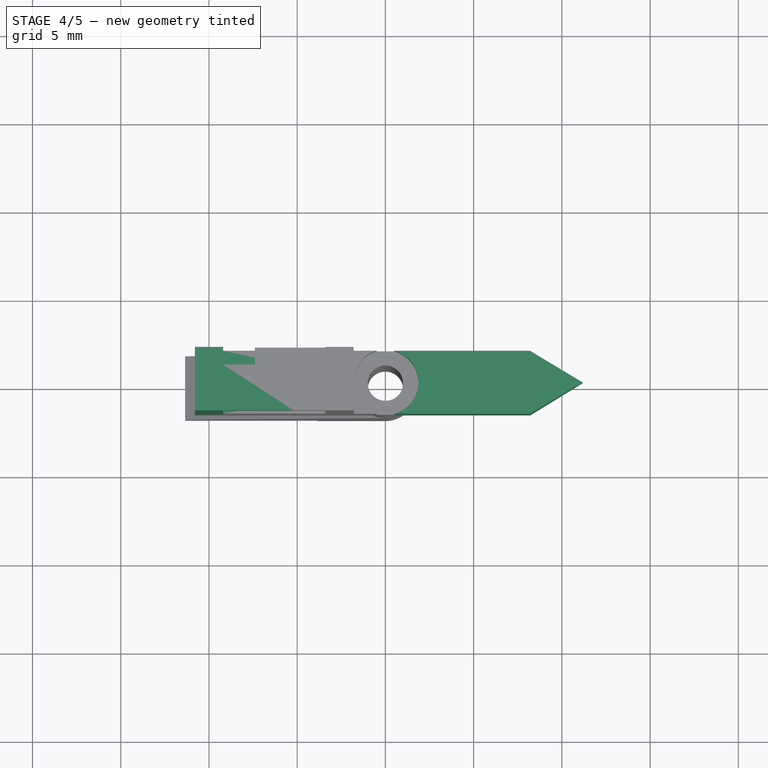
[diagram: stage 4 of 5 — top view after this stage's code; geometry added in this stage tinted green]
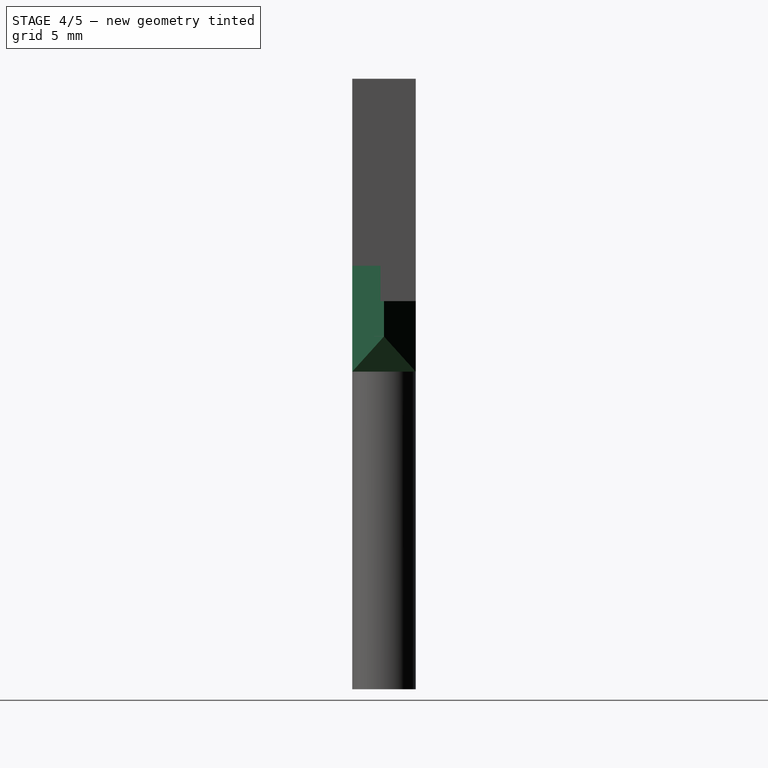
[diagram: stage 4 of 5 — right view after this stage's code; geometry added in this stage tinted green]
FEATURE [Sketcher::SketchObject] Sketch007
  ExternalGeometry = -> [Pad001]
  MapMode = 5
  Placement = pos=(0,-3,0) rot=(1,0,0;1.5708rad)
  sketch-geometry (3):
    g0: LineSegment StartX=11.2 StartY=20 StartZ=0 EndX=11.2 EndY=18 EndZ=0
    g1: LineSegment StartX=11.2 StartY=20 StartZ=0 EndX=8.2 EndY=18 EndZ=0
    g2: LineSegment StartX=11.2 StartY=18 StartZ=0 EndX=8.2 EndY=18 EndZ=0
  constraints (7):
    c: Coincident(g1,g0)
    c: Coincident(g2,g0)
    c: Coincident(g2,g1)
    c: Horizontal(g2)
    c: Distance(g2) = 3
    c: Coincident(g0,g-3)
    c: Coincident(g0,g-3)
FEATURE [Sketcher::SketchObject] Sketch009
  ExternalGeometry = -> [Pad003]
  MapMode = 5
  Placement = pos=(0,-1.8,0) rot=(1,0,0;1.5708rad)
  Support = -> [Pad003]
  sketch-geometry (3):
    g0: LineSegment StartX=-3.8 StartY=20 StartZ=0 EndX=-3.8 EndY=18 EndZ=0
    g1: LineSegment StartX=-3.8 StartY=20 StartZ=0 EndX=-6.8 EndY=18 EndZ=0
    g2: LineSegment StartX=-3.8 StartY=18 StartZ=0 EndX=-6.8 EndY=18 EndZ=0
  constraints (8):
    c: Coincident(g2,g1)
    c: Coincident(g2,g0)
    c: Horizontal(g2)
    c: Distance(g2) = 3
    c: Coincident(g-3,g0)
    c: Coincident(g1,g0)
    c: PointOnObject(g0,g-3)
    c: Distance(g0) = 2
FEATURE [PartDesign::Pocket] Pocket
  BaseFeature = -> Pad001
  Length = 5
  Length2 = 100
  Profile = -> Sketch007
  Type = 1
FEATURE [Sketcher::SketchObject] Sketch008
  ExternalGeometry = -> [Pocket]
  MapMode = 5
  Placement = pos=(0,0,20) rot=(0,0,1;0rad)
  Support = -> [Pocket]
  sketch-geometry (5):
    g0: LineSegment StartX=11.19 StartY=-2e-16 StartZ=0 EndX=8.2 EndY=-1.8 EndZ=0
    g1: LineSegment StartX=8.2 StartY=1.8 StartZ=0 EndX=11.19 EndY=-2e-16 EndZ=0
    g2: LineSegment StartX=8.2 StartY=-1.8 StartZ=0 EndX=11.2 EndY=-1.8 EndZ=0
    g3: LineSegment StartX=8.2 StartY=1.8 StartZ=0 EndX=11.2 EndY=1.8 EndZ=0
    g4: LineSegment StartX=11.2 StartY=-1.8 StartZ=0 EndX=11.2 EndY=1.8 EndZ=0
  constraints (13):
    c: Coincident(g1,g0)
    c: Coincident(g2,g0)
    c: Horizontal(g2)
    c: Horizontal(g3)
    c: Distance(g2) = 3
    c: Equal(g2,g3)
    c: Coincident(g1,g3)
    c: Coincident(g2,g4)
    c: Coincident(g4,g3)
    c: PointOnObject(g0,g-1)
    c: DistanceX(g0,g3) = 0.01
    c: Coincident(g3,g-3)
    c: Coincident(g2,g-3)
FEATURE [PartDesign::Pocket] Pocket001
  BaseFeature = -> Pocket
  Length = 5
  Length2 = 100
  Profile = -> Sketch008
  Type = 1
FEATURE [Sketcher::SketchObject] Sketch032
  ExternalGeometry = -> [Pocket001]
  MapMode = 5
  Placement = pos=(0,0,20) rot=(0,0,1;0rad)
  sketch-geometry (9):
    g0: LineSegment StartX=-10.8 StartY=1.8 StartZ=0 EndX=-10.8 EndY=-1.8 EndZ=0
    g1: LineSegment StartX=8.2 StartY=1.8 StartZ=0 EndX=11.19 EndY=-7e-16 EndZ=0
    g2: LineSegment StartX=11.19 StartY=-7e-16 StartZ=0 EndX=8.2 EndY=-1.8 EndZ=0
    g3: ArcOfCircle CenterX=0 CenterY=0 CenterZ=0 NormalX=0 NormalY=0 NormalZ=1 AngleXU=0 Radius=1.86815 StartAngle=1.84174 EndAngle=4.44144
    g4: ArcOfCircle CenterX=0 CenterY=0 CenterZ=0 NormalX=0 NormalY=0 NormalZ=1 AngleXU=0 Radius=1.86815 StartAngle=4.98334 EndAngle=7.58303
    g5: LineSegment StartX=-10.8 StartY=-1.8 StartZ=0 EndX=-0.5 EndY=-1.8 EndZ=0
    g6: LineSegment StartX=0.5 StartY=-1.8 StartZ=0 EndX=8.2 EndY=-1.8 EndZ=0
    g7: LineSegment StartX=8.2 StartY=1.8 StartZ=0 EndX=0.5 EndY=1.8 EndZ=0
    g8: LineSegment StartX=-0.5 StartY=1.8 StartZ=0 EndX=-10.8 EndY=1.8 EndZ=0
  constraints (22):
    c: Coincident(g2,g1)
    c: Coincident(g0,g-3)
    c: Coincident(g0,g-5)
    c: Coincident(g2,g-5)
    c: Coincident(g-4,g1)
    c: Coincident(g1,g-4)
    c: Coincident(g3,g-1)
    c: Coincident(g4,g3)
    c: Equal(g4,g3)
    c: Coincident(g5,g0)
    c: Coincident(g5,g3)
    c: Coincident(g6,g4)
    c: Coincident(g6,g2)
    c: Coincident(g7,g1)
    c: Coincident(g7,g4)
    c: Coincident(g8,g3)
    c: Coincident(g8,g0)
    c: Horizontal(g7)
    c: Horizontal(g8)
    c: Horizontal(g5)
    c: Horizontal(g6)
    c: DistanceX(g3,g4) = 1
FEATURE [PartDesign::Pad] Pad014
  BaseFeature = -> Pocket001
  Length = 2
  Length2 = 100
  Profile = -> Sketch032
  Type = 0
FEATURE [Sketcher::SketchObject] Sketch033
  ExternalGeometry = -> [Pad014]
  MapMode = 5
  Placement = pos=(0,0,22) rot=(0,0,1;0rad)
  Support = -> [Pad014]
  sketch-geometry (4):
    g0: LineSegment StartX=-10.8 StartY=1.8 StartZ=0 EndX=-9.2 EndY=1.8 EndZ=0
    g1: LineSegment StartX=-9.2 StartY=1.8 StartZ=0 EndX=-9.2 EndY=-1.8 EndZ=0
    g2: LineSegment StartX=-9.2 StartY=-1.8 StartZ=0 EndX=-10.8 EndY=-1.8 EndZ=0
    g3: LineSegment StartX=-10.8 StartY=-1.8 StartZ=0 EndX=-10.8 EndY=1.8 EndZ=0
  constraints (10):
    c: Coincident(g0,g1)
    c: Coincident(g1,g2)
    c: Coincident(g2,g3)
    c: Coincident(g3,g0)
    c: Horizontal(g0)
    c: Horizontal(g2)
    c: Vertical(g1)
    c: Coincident(g0,g-3)
    c: Coincident(g2,g-3)
    c: Distance(g0) = 1.6
FEATURE [PartDesign::Pad] Pad015
  BaseFeature = -> Pad014
  Length = 11
  Length2 = 100
  Profile = -> Sketch033
  Type = 0
  expr: Length = 9 + 2
FEATURE [Sketcher::SketchObject] Sketch034
  ExternalGeometry = -> [Pad015]
  MapMode = 5
  Placement = pos=(0,0,22) rot=(0,0,1;0rad)
  Support = -> [Pad015]
  sketch-geometry (9):
    g0: LineSegment StartX=-9.2 StartY=-1.8 StartZ=0 EndX=-0.5 EndY=-1.8 EndZ=0
    g1: LineSegment StartX=-1.85742 StartY=-0.2 StartZ=0 EndX=-9.2 EndY=-0.2 EndZ=0
    g2: LineSegment StartX=-9.2 StartY=-0.2 StartZ=0 EndX=-9.2 EndY=-1.8 EndZ=0
    g3: ArcOfCircle CenterX=0 CenterY=0 CenterZ=0 NormalX=0 NormalY=0 NormalZ=1 AngleXU=0 Radius=1.86815 StartAngle=3.24886 EndAngle=4.44144
    g4: ArcOfCircle CenterX=0 CenterY=0 CenterZ=0 NormalX=0 NormalY=0 NormalZ=1 AngleXU=0 Radius=1.86815 StartAngle=4.98334 EndAngle=6.17592
    g5: LineSegment StartX=1.85742 StartY=-0.2 StartZ=0 EndX=10.8578 EndY=-0.2 EndZ=0
    g6: LineSegment StartX=0.5 StartY=-1.8 StartZ=0 EndX=8.2 EndY=-1.8 EndZ=0
    g7: LineSegment StartX=8.2 StartY=-1.8 StartZ=0 EndX=10.8578 EndY=-0.2 EndZ=0
    g8: LineSegment [constr] StartX=1.85742 StartY=-0.2 StartZ=0 EndX=-1.85742 EndY=-0.2 EndZ=0
  constraints (22):
    c: Coincident(g1,g2)
    c: Coincident(g2,g0)
    c: Horizontal(g1)
    c: Vertical(g2)
    c: Coincident(g0,g-3)
    c: Coincident(g0,g-4)
    c: Coincident(g3,g-1)
    c: Coincident(g3,g1)
    c: Coincident(g3,g0)
    c: Distance(g2) = 1.6
    c: Coincident(g4,g3)
    c: Coincident(g4,g-5)
    c: Coincident(g5,g4)
    c: PointOnObject(g5,g-6)
    c: Horizontal(g5)
    c: Coincident(g6,g4)
    c: Coincident(g6,g-6)
    c: Coincident(g7,g6)
    c: Coincident(g7,g5)
    c: Coincident(g8,g4)
    c: Coincident(g8,g1)
    c: Horizontal(g8)
FEATURE [PartDesign::Pad] Pad016
  BaseFeature = -> Pad015
  Length = 2
  Length2 = 100
  Profile = -> Sketch034
  Type = 0
FEATURE [Sketcher::SketchObject] Sketch035
  ExternalGeometry = -> [Pad016]
  MapMode = 5
  Placement = pos=(0,0,33) rot=(0,0,1;0rad)
  Support = -> [Pad016]
  sketch-geometry (4):
    g0: LineSegment StartX=-10.8 StartY=1.8 StartZ=0 EndX=-5.2 EndY=1.8 EndZ=0
    g1: LineSegment StartX=-5.2 StartY=1.8 StartZ=0 EndX=-5.2 EndY=-1.8 EndZ=0
    g2: LineSegment StartX=-5.2 StartY=-1.8 StartZ=0 EndX=-10.8 EndY=-1.8 EndZ=0
    g3: LineSegment StartX=-10.8 StartY=-1.8 StartZ=0 EndX=-10.8 EndY=1.8 EndZ=0
  constraints (10):
    c: Coincident(g0,g1)
    c: Coincident(g1,g2)
    c: Coincident(g2,g3)
    c: Coincident(g3,g0)
    c: Horizontal(g0)
    c: Horizontal(g2)
    c: Vertical(g1)
    c: Coincident(g-3,g2)
    c: Coincident(g0,g-3)
    c: DistanceX(g-4,g0) = 4
FEATURE [PartDesign::Pad] Pad017
  BaseFeature = -> Pad016
  Length = 1.6
  Length2 = 100
  Profile = -> Sketch035
  Type = 0
FEATURE [Sketcher::SketchObject] Sketch043
  MapMode = 5
  Support = -> [XY_Plane002]
  expr: Constraints[3] = 1 + 0.4 * 2
  expr: Constraints[2] = 2 / 2
  sketch-geometry (2):
    g0: Circle CenterX=0 CenterY=0 CenterZ=0 NormalX=0 NormalY=0 NormalZ=1 AngleXU=0 Radius=1
    g1: Circle CenterX=0 CenterY=0 CenterZ=0 NormalX=0 NormalY=0 NormalZ=1 AngleXU=0 Radius=1.8
  constraints (4):
    c: Coincident(g0,g-1)
    c: Coincident(g1,g0)
    c: Radius(g0) = 1
    c: Radius(g1) = 1.8
FEATURE [PartDesign::Pad] Pad023
  Length = 18
  Length2 = 100
  Profile = -> Sketch043
  Type = 0
FEATURE [PartDesign::Body] Body003
  Group = -> [Sketch043,Pad023,Sketch041,Pad022,Sketch040,Sketch045,Pocket004,Pocket003,Sketch055,Pad028,Sketch049,Pad032,Sketch053,Pad033,Sketch051,Pad030,Sketch057,Pocket007]
  Origin = -> Origin003
  Placement = pos=(0,35.2,0) rot=(0,0,1;0rad)
  Tip = -> Pocket007
  expr: Placement.Base.y = 40 - 2.4 * 2
FEATURE [Sketcher::SketchObject] Sketch058
  ExternalGeometry = -> [Pad017]
  MapMode = 5
  Placement = pos=(0,0,34.6) rot=(0,0,1;0rad)
  Support = -> [Pad017]
  sketch-geometry (4):
    g0: LineSegment StartX=-9.2 StartY=1.8 StartZ=0 EndX=-5.2 EndY=1.8 EndZ=0
    g1: LineSegment StartX=-5.2 StartY=1.8 StartZ=0 EndX=-5.2 EndY=0.8 EndZ=0
    g2: LineSegment StartX=-5.2 StartY=0.8 StartZ=0 EndX=-9.2 EndY=0.8 EndZ=0
    g3: LineSegment StartX=-9.2 StartY=0.8 StartZ=0 EndX=-9.2 EndY=1.8 EndZ=0
  constraints (11):
    c: Coincident(g0,g1)
    c: Coincident(g1,g2)
    c: Coincident(g2,g3)
    c: Coincident(g3,g0)
    c: Horizontal(g0)
    c: Horizontal(g2)
    c: Vertical(g1)
    c: Vertical(g3)
    c: Coincident(g0,g-4)
    c: PointOnObject(g1,g-3)
    c: Distance(g1) = 1
FEATURE [PartDesign::Pocket] Pocket008
  BaseFeature = -> Pad017
  Length = 5
  Length2 = 100
  Profile = -> Sketch058
  Type = 2
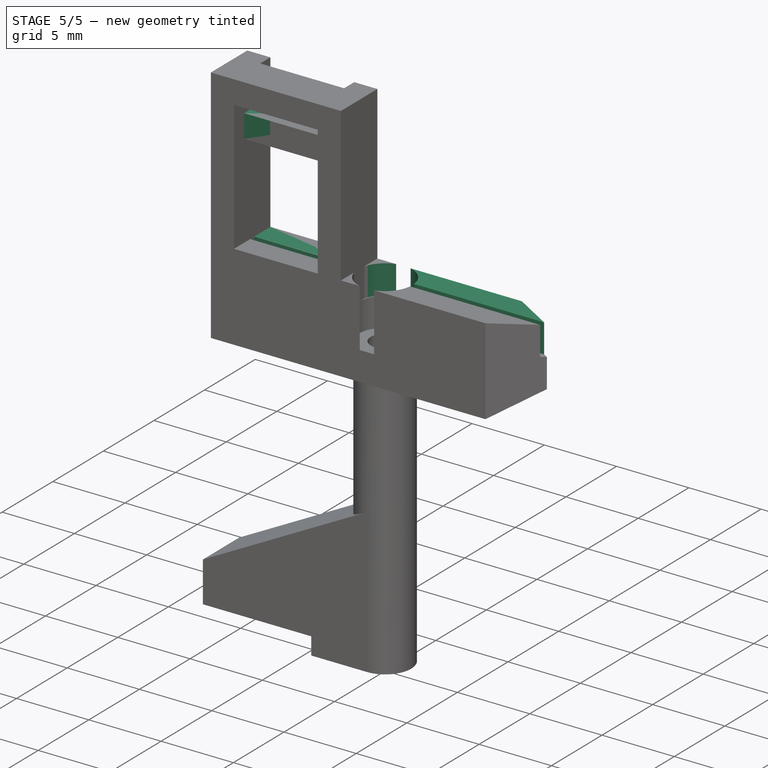
[diagram: stage 5 of 5 — iso view after this stage's code; geometry added in this stage tinted green]
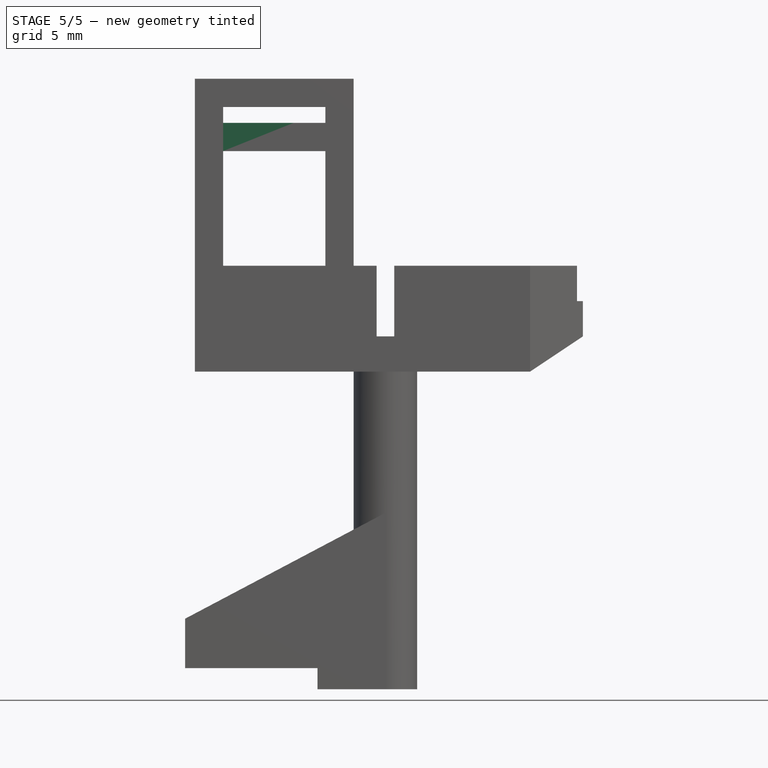
[diagram: stage 5 of 5 — front view after this stage's code; geometry added in this stage tinted green]
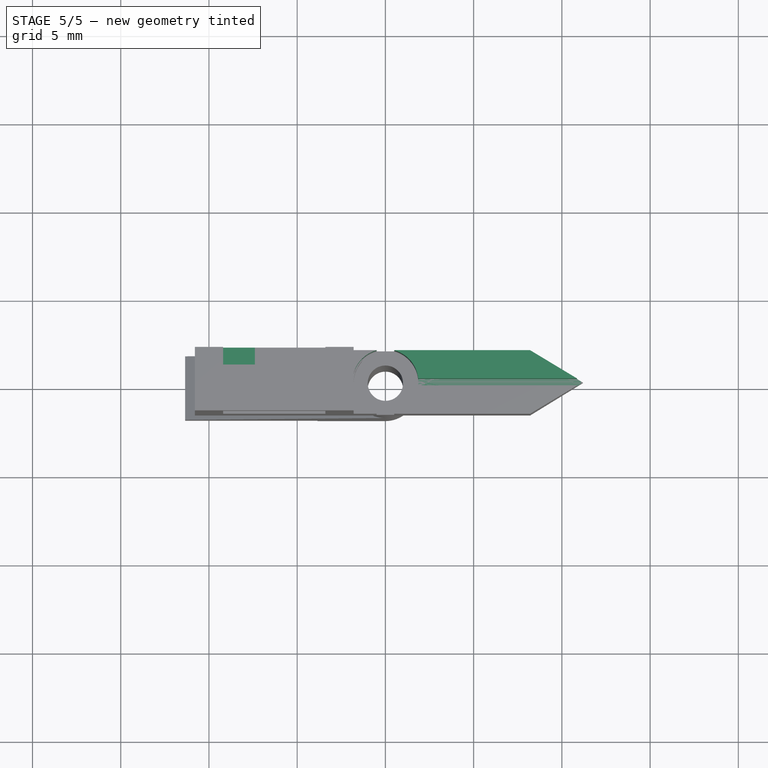
[diagram: stage 5 of 5 — top view after this stage's code; geometry added in this stage tinted green]
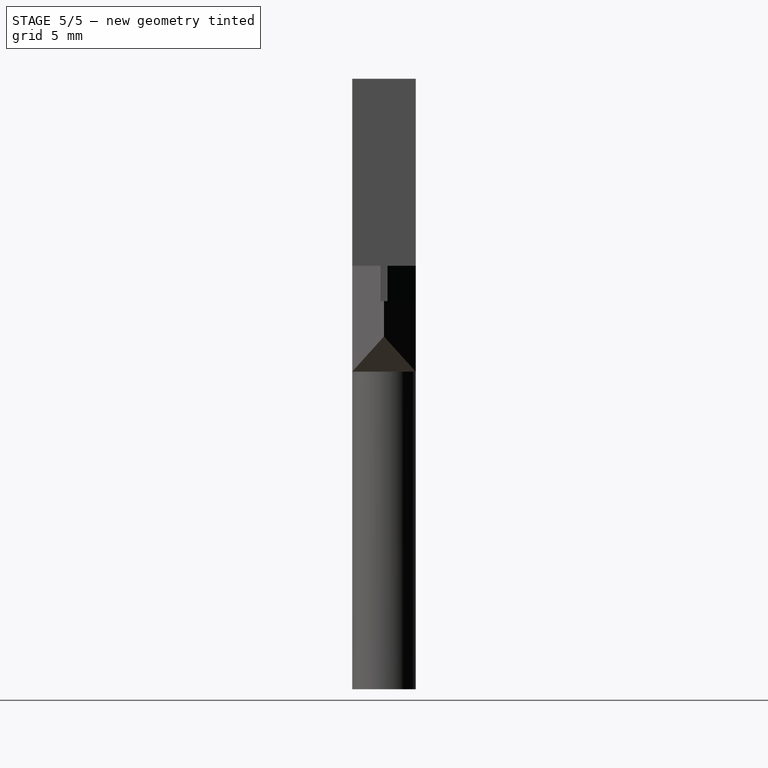
[diagram: stage 5 of 5 — right view after this stage's code; geometry added in this stage tinted green]
FEATURE [Sketcher::SketchObject] Sketch041
  ExternalGeometry = -> [Pad023]
  MapMode = 5
  Placement = pos=(0,0,18) rot=(0,0,1;0rad)
  Support = -> [Pad023]
  expr: Constraints[15] = 20 - 2.4 * 2 - 2 - 0.2
  expr: Constraints[12] = 21 + 1.6 - (2 - 1.6) - 0.2
  sketch-geometry (6):
    g0: LineSegment StartX=-10.8 StartY=1.8 StartZ=0 EndX=11.2 EndY=1.8 EndZ=0
    g1: LineSegment StartX=11.2 StartY=1.8 StartZ=0 EndX=11.2 EndY=-1.8 EndZ=0
    g2: LineSegment StartX=11.2 StartY=-1.8 StartZ=0 EndX=-10.8 EndY=-1.8 EndZ=0
    g3: LineSegment StartX=-10.8 StartY=-1.8 StartZ=0 EndX=-10.8 EndY=1.8 EndZ=0
    g4: Circle CenterX=0 CenterY=0 CenterZ=0 NormalX=0 NormalY=0 NormalZ=1 AngleXU=0 Radius=1
    g5: GeomPoint X=-1.8 Y=0 Z=0
  constraints (16):
    c: Coincident(g0,g1)
    c: Coincident(g1,g2)
    c: Coincident(g2,g3)
    c: Coincident(g3,g0)
    c: Horizontal(g0)
    c: Horizontal(g2)
    c: Vertical(g1)
    c: Vertical(g3)
    c: Tangent(g0,g-3)
    c: Tangent(g-3,g2)
    c: Coincident(g4,g-1)
    c: Equal(g-4,g4)
    c: Distance(g0) = 22
    c: PointOnObject(g5,g-3)
    c: PointOnObject(g5,g-1)
    c: DistanceX(g5,g0) = 13
FEATURE [PartDesign::Pad] Pad022
  BaseFeature = -> Pad023
  Length = 2
  Length2 = 100
  Profile = -> Sketch041
  Type = 0
FEATURE [PartDesign::Pocket] Pocket004
  BaseFeature = -> Pad022
  Length = 5
  Length2 = 100
  Profile = -> Sketch040
  Type = 1
FEATURE [Sketcher::SketchObject] Sketch045
  ExternalGeometry = -> [Pocket004]
  MapMode = 5
  Placement = pos=(0,0,20) rot=(0,0,1;0rad)
  Support = -> [Pocket004]
  sketch-geometry (5):
    g0: LineSegment StartX=11.19 StartY=-2e-16 StartZ=0 EndX=8.2 EndY=-1.8 EndZ=0
    g1: LineSegment StartX=8.2 StartY=1.8 StartZ=0 EndX=11.19 EndY=-2e-16 EndZ=0
    g2: LineSegment StartX=8.2 StartY=-1.8 StartZ=0 EndX=11.2 EndY=-1.8 EndZ=0
    g3: LineSegment StartX=8.2 StartY=1.8 StartZ=0 EndX=11.2 EndY=1.8 EndZ=0
    g4: LineSegment StartX=11.2 StartY=-1.8 StartZ=0 EndX=11.2 EndY=1.8 EndZ=0
  constraints (13):
    c: Coincident(g1,g0)
    c: Coincident(g2,g0)
    c: Horizontal(g2)
    c: Horizontal(g3)
    c: Distance(g2) = 3
    c: Equal(g2,g3)
    c: Coincident(g1,g3)
    c: Coincident(g2,g4)
    c: Coincident(g4,g3)
    c: PointOnObject(g0,g-1)
    c: DistanceX(g0,g3) = 0.01
    c: Coincident(g3,g-3)
    c: Coincident(g2,g-3)
FEATURE [PartDesign::Pocket] Pocket003
  BaseFeature = -> Pocket004
  Length = 5
  Length2 = 100
  Profile = -> Sketch045
  Type = 1
FEATURE [Sketcher::SketchObject] Sketch055
  ExternalGeometry = -> [Pocket003]
  MapMode = 5
  Placement = pos=(0,0,20) rot=(0,0,1;0rad)
  sketch-geometry (9):
    g0: LineSegment StartX=-10.8 StartY=1.8 StartZ=0 EndX=-10.8 EndY=-1.8 EndZ=0
    g1: LineSegment StartX=8.2 StartY=1.8 StartZ=0 EndX=11.19 EndY=-7e-16 EndZ=0
    g2: LineSegment StartX=11.19 StartY=-7e-16 StartZ=0 EndX=8.2 EndY=-1.8 EndZ=0
    g3: ArcOfCircle CenterX=0 CenterY=0 CenterZ=0 NormalX=0 NormalY=0 NormalZ=1 AngleXU=0 Radius=1.86815 StartAngle=1.84174 EndAngle=4.44144
    g4: ArcOfCircle CenterX=0 CenterY=0 CenterZ=0 NormalX=0 NormalY=0 NormalZ=1 AngleXU=0 Radius=1.86815 StartAngle=4.98334 EndAngle=7.58303
    g5: LineSegment StartX=-10.8 StartY=-1.8 StartZ=0 EndX=-0.5 EndY=-1.8 EndZ=0
    g6: LineSegment StartX=0.5 StartY=-1.8 StartZ=0 EndX=8.2 EndY=-1.8 EndZ=0
    g7: LineSegment StartX=8.2 StartY=1.8 StartZ=0 EndX=0.5 EndY=1.8 EndZ=0
    g8: LineSegment StartX=-0.5 StartY=1.8 StartZ=0 EndX=-10.8 EndY=1.8 EndZ=0
  constraints (22):
    c: Coincident(g2,g1)
    c: Coincident(g0,g-3)
    c: Coincident(g0,g-5)
    c: Coincident(g2,g-5)
    c: Coincident(g-4,g1)
    c: Coincident(g1,g-4)
    c: Coincident(g3,g-1)
    c: Coincident(g4,g3)
    c: Equal(g4,g3)
    c: Coincident(g5,g0)
    c: Coincident(g5,g3)
    c: Coincident(g6,g4)
    c: Coincident(g6,g2)
    c: Coincident(g7,g1)
    c: Coincident(g7,g4)
    c: Coincident(g8,g3)
    c: Coincident(g8,g0)
    c: Horizontal(g7)
    c: Horizontal(g8)
    c: Horizontal(g5)
    c: Horizontal(g6)
    c: DistanceX(g3,g4) = 1
FEATURE [PartDesign::Pad] Pad028
  BaseFeature = -> Pocket003
  Length = 2
  Length2 = 100
  Profile = -> Sketch055
  Type = 0
FEATURE [Sketcher::SketchObject] Sketch049
  ExternalGeometry = -> [Pad028]
  MapMode = 5
  Placement = pos=(0,0,22) rot=(0,0,1;0rad)
  Support = -> [Pad028]
  sketch-geometry (4):
    g0: LineSegment StartX=-10.8 StartY=1.8 StartZ=0 EndX=-9.2 EndY=1.8 EndZ=0
    g1: LineSegment StartX=-9.2 StartY=1.8 StartZ=0 EndX=-9.2 EndY=-1.8 EndZ=0
    g2: LineSegment StartX=-9.2 StartY=-1.8 StartZ=0 EndX=-10.8 EndY=-1.8 EndZ=0
    g3: LineSegment StartX=-10.8 StartY=-1.8 StartZ=0 EndX=-10.8 EndY=1.8 EndZ=0
  constraints (10):
    c: Coincident(g0,g1)
    c: Coincident(g1,g2)
    c: Coincident(g2,g3)
    c: Coincident(g3,g0)
    c: Horizontal(g0)
    c: Horizontal(g2)
    c: Vertical(g1)
    c: Coincident(g0,g-3)
    c: Coincident(g2,g-3)
    c: Distance(g0) = 1.6
FEATURE [PartDesign::Pad] Pad032
  BaseFeature = -> Pad028
  Length = 8.5
  Length2 = 100
  Profile = -> Sketch049
  Type = 0
  expr: Length = 6.5 + 2
FEATURE [Sketcher::SketchObject] Sketch053
  ExternalGeometry = -> [Pad032]
  MapMode = 5
  Placement = pos=(0,0,22) rot=(0,0,1;0rad)
  Support = -> [Pad032]
  sketch-geometry (9):
    g0: LineSegment StartX=-9.2 StartY=0.2 StartZ=0 EndX=-1.85742 EndY=0.2 EndZ=0
    g1: LineSegment StartX=-0.5 StartY=1.8 StartZ=0 EndX=-9.2 EndY=1.8 EndZ=0
    g2: LineSegment StartX=-9.2 StartY=1.8 StartZ=0 EndX=-9.2 EndY=0.2 EndZ=0
    g3: ArcOfCircle CenterX=0 CenterY=0 CenterZ=0 NormalX=0 NormalY=0 NormalZ=1 AngleXU=0 Radius=1.86815 StartAngle=1.84174 EndAngle=3.03433
    g4: ArcOfCircle CenterX=0 CenterY=0 CenterZ=0 NormalX=0 NormalY=0 NormalZ=1 AngleXU=0 Radius=1.86815 StartAngle=0.107263 EndAngle=1.29985
    g5: LineSegment StartX=0.5 StartY=1.8 StartZ=0 EndX=8.2 EndY=1.8 EndZ=0
    g6: LineSegment StartX=1.85742 StartY=0.2 StartZ=0 EndX=10.8578 EndY=0.2 EndZ=0
    g7: LineSegment StartX=10.8578 StartY=0.2 StartZ=0 EndX=8.2 EndY=1.8 EndZ=0
    g8: LineSegment [constr] StartX=-1.85742 StartY=0.2 StartZ=0 EndX=1.85742 EndY=0.2 EndZ=0
  constraints (24):
    c: Coincident(g1,g2)
    c: Coincident(g2,g0)
    c: Vertical(g2)
    c: Coincident(g3,g-1)
    c: Coincident(g3,g1)
    c: Coincident(g3,g0)
    c: Distance(g2) = 1.6
    c: Coincident(g4,g3)
    c: Coincident(g5,g4)
    c: Coincident(g6,g4)
    c: Coincident(g5,g7)
    c: Coincident(g6,g7)
    c: Horizontal(g6)
    c: Horizontal(g0)
    c: Coincident(g1,g-3)
    c: Coincident(g5,g-4)
    c: PointOnObject(g6,g-4)
    c: Horizontal(g1)
    c: Horizontal(g5)
    c: PointOnObject(g1,g-5)
    c: PointOnObject(g4,g-6)
    c: Coincident(g8,g0)
    c: Coincident(g8,g4)
    c: Horizontal(g8)
FEATURE [PartDesign::Pad] Pad033
  BaseFeature = -> Pad032
  Length = 2
  Length2 = 100
  Profile = -> Sketch053
  Type = 0
FEATURE [Sketcher::SketchObject] Sketch051
  ExternalGeometry = -> [Pad033]
  MapMode = 5
  Placement = pos=(0,0,30.5) rot=(0,0,1;0rad)
  Support = -> [Pad033]
  sketch-geometry (4):
    g0: LineSegment StartX=-10.8 StartY=1.8 StartZ=0 EndX=-5.2 EndY=1.8 EndZ=0
    g1: LineSegment StartX=-5.2 StartY=1.8 StartZ=0 EndX=-5.2 EndY=-1.8 EndZ=0
    g2: LineSegment StartX=-5.2 StartY=-1.8 StartZ=0 EndX=-10.8 EndY=-1.8 EndZ=0
    g3: LineSegment StartX=-10.8 StartY=-1.8 StartZ=0 EndX=-10.8 EndY=1.8 EndZ=0
  constraints (10):
    c: Coincident(g0,g1)
    c: Coincident(g1,g2)
    c: Coincident(g2,g3)
    c: Coincident(g3,g0)
    c: Horizontal(g0)
    c: Horizontal(g2)
    c: Vertical(g1)
    c: Coincident(g0,g-3)
    c: Coincident(g2,g-3)
    c: DistanceX(g-4,g0) = 4
FEATURE [PartDesign::Pad] Pad030
  BaseFeature = -> Pad033
  Length = 1.6
  Length2 = 100
  Profile = -> Sketch051
  Type = 0
FEATURE [Sketcher::SketchObject] Sketch057
  ExternalGeometry = -> [Pad030]
  MapMode = 5
  Placement = pos=(0,0,32.1) rot=(0,0,1;0rad)
  Support = -> [Pad030]
  sketch-geometry (4):
    g0: LineSegment StartX=-9.2 StartY=-1.8 StartZ=0 EndX=-5.2 EndY=-1.8 EndZ=0
    g1: LineSegment StartX=-5.2 StartY=-1.8 StartZ=0 EndX=-5.2 EndY=-0.8 EndZ=0
    g2: LineSegment StartX=-5.2 StartY=-0.8 StartZ=0 EndX=-9.2 EndY=-0.8 EndZ=0
    g3: LineSegment StartX=-9.2 StartY=-0.8 StartZ=0 EndX=-9.2 EndY=-1.8 EndZ=0
  constraints (11):
    c: Coincident(g0,g1)
    c: Coincident(g1,g2)
    c: Coincident(g2,g3)
    c: Coincident(g3,g0)
    c: Horizontal(g0)
    c: Horizontal(g2)
    c: Vertical(g1)
    c: Vertical(g3)
    c: Coincident(g0,g-4)
    c: PointOnObject(g1,g-3)
    c: Distance(g3) = 1
FEATURE [PartDesign::Pocket] Pocket007
  BaseFeature = -> Pad030
  Length = 5
  Length2 = 100
  Profile = -> Sketch057
  Type = 2
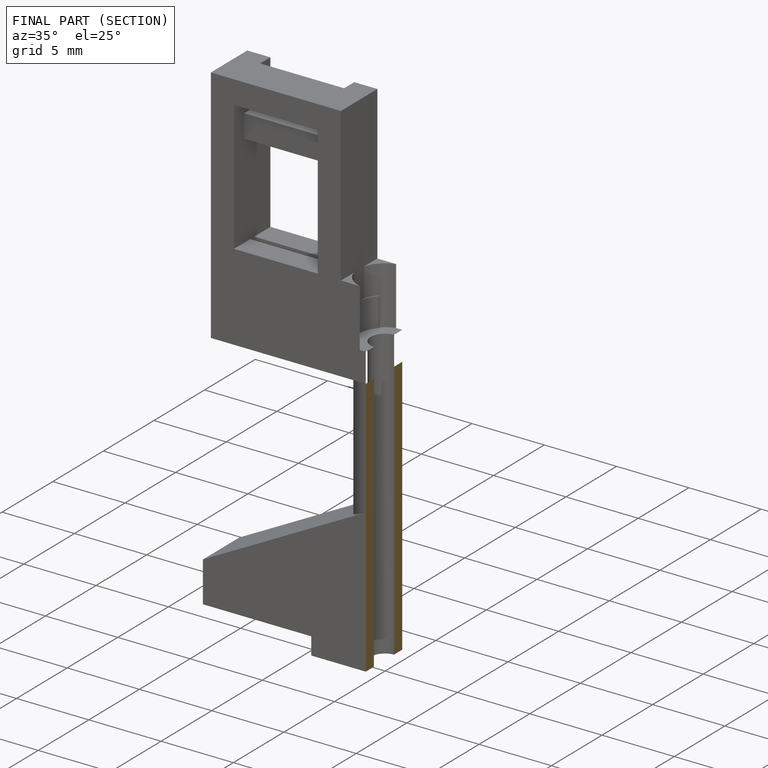
[diagram: finished part — half-section view (interior)]
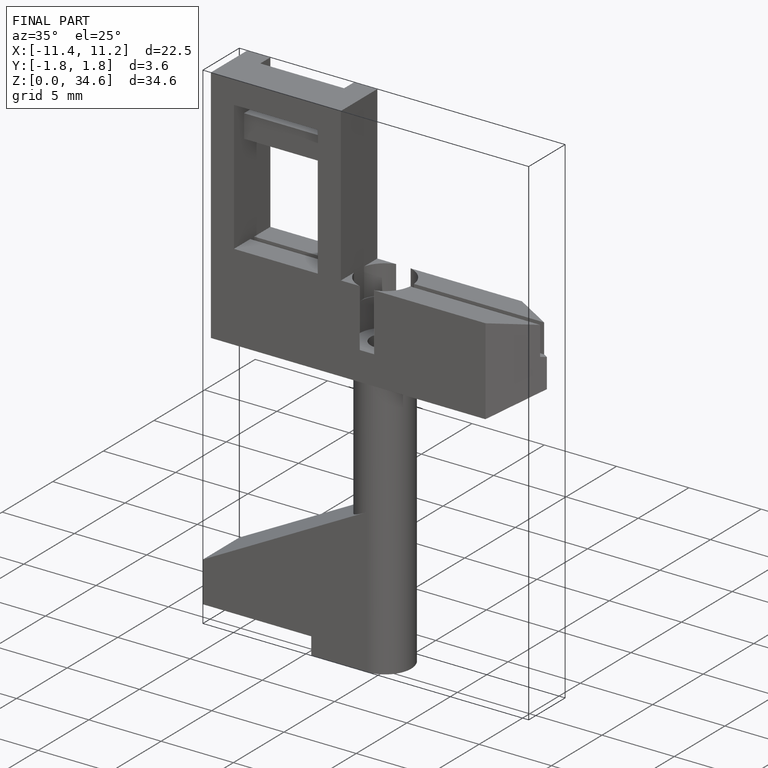
[diagram: finished part — iso view with bounding-box wireframe]
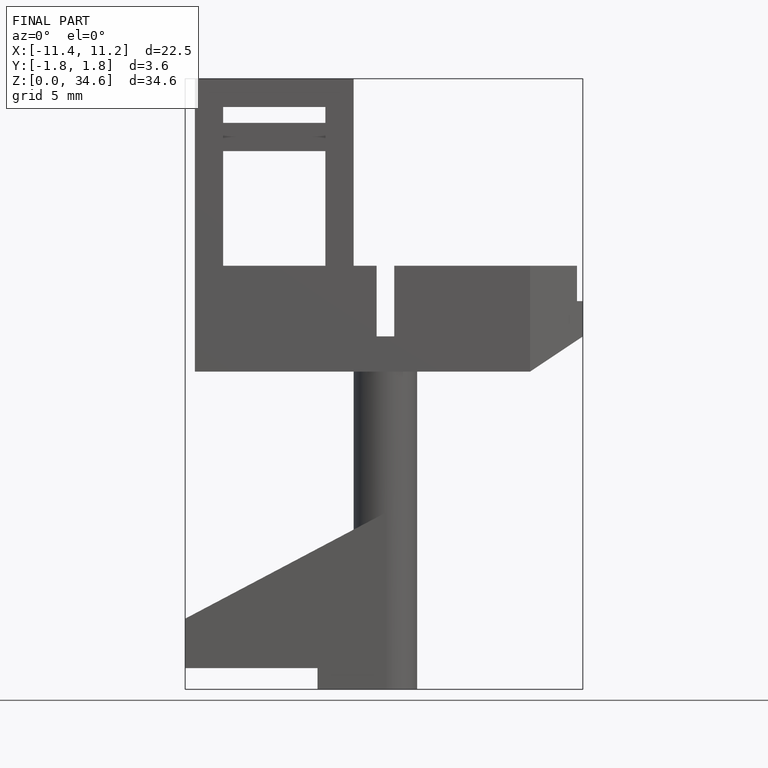
[diagram: finished part — front view with bounding-box wireframe]
